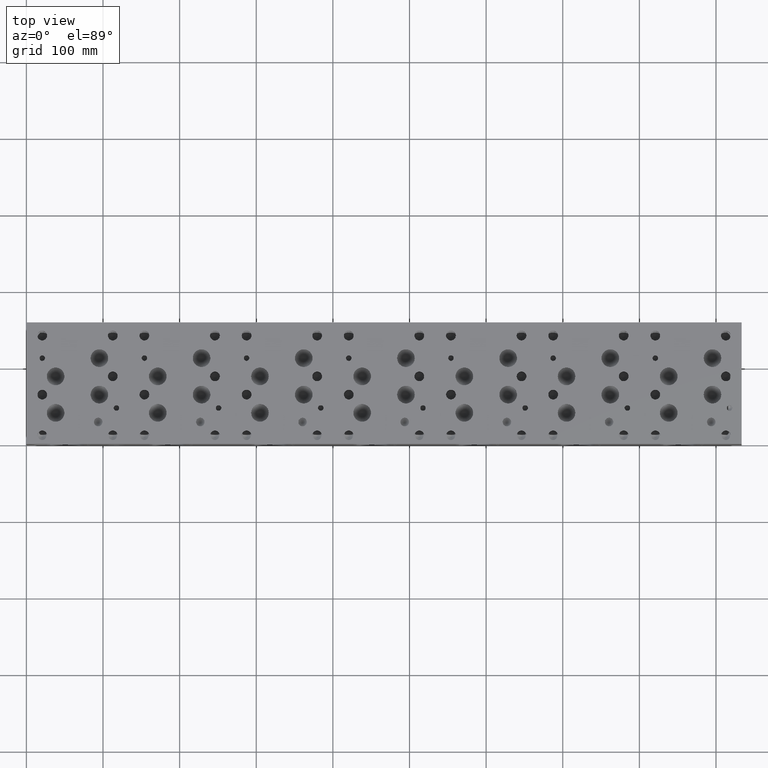
[diagram: clean part render]
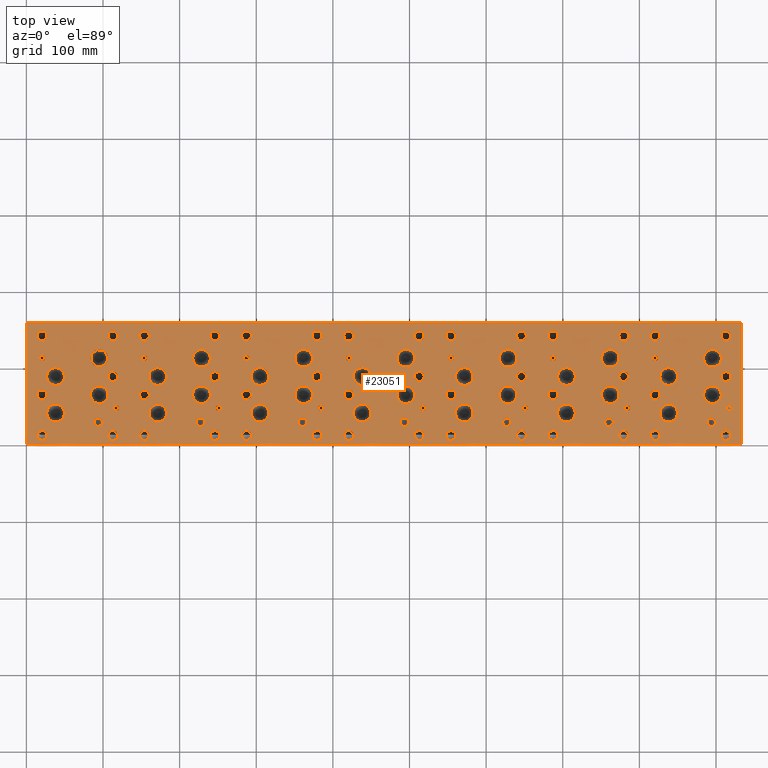
[diagram: same view with one face highlighted and labeled with its STEP entity id]
A machine part, top view. The second image highlights one B-rep face of the part: STEP entity #23051.
In plain terms, the highlighted planar face has unit normal (0, 0, 1).
Its self-contained STEP definition (entity closure, byte-faithful):
#910=CIRCLE('',#24238,5.5626);
#911=CIRCLE('',#24239,5.5626);
#914=CIRCLE('',#24244,5.5626);
#915=CIRCLE('',#24245,5.5626);
#918=CIRCLE('',#24250,5.5626);
#919=CIRCLE('',#24251,5.5626);
#922=CIRCLE('',#24256,5.5626);
#923=CIRCLE('',#24257,5.5626);
#926=CIRCLE('',#24262,5.5626);
#927=CIRCLE('',#24263,5.5626);
#930=CIRCLE('',#24268,5.5626);
#931=CIRCLE('',#24269,5.5626);
#934=CIRCLE('',#24274,5.55625);
#935=CIRCLE('',#24275,5.55625);
#938=CIRCLE('',#24280,11.50874);
#939=CIRCLE('',#24281,11.50874);
#942=CIRCLE('',#24286,11.5062);
#943=CIRCLE('',#24287,11.5062);
#946=CIRCLE('',#24292,11.5062);
#947=CIRCLE('',#24293,11.5062);
#950=CIRCLE('',#24298,11.5062);
#951=CIRCLE('',#24299,11.5062);
#954=CIRCLE('',#24304,11.5062);
#955=CIRCLE('',#24305,11.5062);
#958=CIRCLE('',#24310,11.5062);
#959=CIRCLE('',#24311,11.5062);
#962=CIRCLE('',#24316,11.5062);
#963=CIRCLE('',#24317,11.5062);
#966=CIRCLE('',#24322,11.5062);
#967=CIRCLE('',#24323,11.5062);
#970=CIRCLE('',#24328,11.5062);
#971=CIRCLE('',#24329,11.5062);
#974=CIRCLE('',#24334,11.5062);
#975=CIRCLE('',#24335,11.5062);
#978=CIRCLE('',#24340,11.5062);
#979=CIRCLE('',#24341,11.5062);
#982=CIRCLE('',#24346,11.5062);
#983=CIRCLE('',#24347,11.5062);
#986=CIRCLE('',#24352,11.5062);
#987=CIRCLE('',#24353,11.5062);
#990=CIRCLE('',#24358,11.5062);
#991=CIRCLE('',#24359,11.5062);
#994=CIRCLE('',#24364,11.5062);
#995=CIRCLE('',#24365,11.5062);
#998=CIRCLE('',#24370,11.5062);
#999=CIRCLE('',#24371,11.5062);
#1002=CIRCLE('',#24376,11.5062);
#1003=CIRCLE('',#24377,11.5062);
#1006=CIRCLE('',#24382,11.5062);
#1007=CIRCLE('',#24383,11.5062);
#1010=CIRCLE('',#24388,11.5062);
#1011=CIRCLE('',#24389,11.5062);
#1014=CIRCLE('',#24394,11.5062);
#1015=CIRCLE('',#24395,11.5062);
#1018=CIRCLE('',#24400,11.5062);
#1019=CIRCLE('',#24401,11.5062);
#1022=CIRCLE('',#24406,11.5062);
#1023=CIRCLE('',#24407,11.5062);
#1026=CIRCLE('',#24412,11.5062);
#1027=CIRCLE('',#24413,11.5062);
#1030=CIRCLE('',#24418,11.5062);
#1031=CIRCLE('',#24419,11.5062);
#1034=CIRCLE('',#24424,11.5062);
#1035=CIRCLE('',#24425,11.5062);
#1038=CIRCLE('',#24430,11.5062);
#1039=CIRCLE('',#24431,11.5062);
#1042=CIRCLE('',#24436,11.5062);
#1043=CIRCLE('',#24437,11.5062);
#1046=CIRCLE('',#24442,11.5062);
#1047=CIRCLE('',#24443,11.5062);
#1050=CIRCLE('',#24448,3.5687);
#1051=CIRCLE('',#24449,3.5687);
#1054=CIRCLE('',#24454,3.5687);
#1055=CIRCLE('',#24455,3.5687);
#1058=CIRCLE('',#24460,3.5687);
#1059=CIRCLE('',#24461,3.5687);
#1062=CIRCLE('',#24466,3.5687);
#1063=CIRCLE('',#24467,3.5687);
#1066=CIRCLE('',#24472,3.5687);
#1067=CIRCLE('',#24473,3.5687);
#1070=CIRCLE('',#24478,3.5687);
#1071=CIRCLE('',#24479,3.5687);
#1074=CIRCLE('',#24484,3.5687);
#1075=CIRCLE('',#24485,3.5687);
#1078=CIRCLE('',#24490,3.5687);
#1079=CIRCLE('',#24491,3.5687);
#1082=CIRCLE('',#24496,3.5687);
#1083=CIRCLE('',#24497,3.5687);
#1086=CIRCLE('',#24502,3.5687);
#1087=CIRCLE('',#24503,3.5687);
#1090=CIRCLE('',#24508,3.5687);
#1091=CIRCLE('',#24509,3.5687);
#1094=CIRCLE('',#24514,3.5687);
#1095=CIRCLE('',#24515,3.5687);
#1098=CIRCLE('',#24520,3.5687);
#1099=CIRCLE('',#24521,3.5687);
#1102=CIRCLE('',#24526,3.5687);
#1103=CIRCLE('',#24527,3.5687);
#1109=CIRCLE('',#24536,6.35);
#1110=CIRCLE('',#24537,6.35);
#1116=CIRCLE('',#24547,6.35);
#1117=CIRCLE('',#24548,6.35);
#1123=CIRCLE('',#24558,6.35);
#1124=CIRCLE('',#24559,6.35);
#1130=CIRCLE('',#24569,6.35);
#1131=CIRCLE('',#24570,6.35);
#1137=CIRCLE('',#24580,6.35);
#1138=CIRCLE('',#24581,6.35);
#1144=CIRCLE('',#24591,6.35);
#1145=CIRCLE('',#24592,6.35);
#1151=CIRCLE('',#24602,6.35);
#1152=CIRCLE('',#24603,6.35);
#1158=CIRCLE('',#24613,6.35);
#1159=CIRCLE('',#24614,6.35);
#1165=CIRCLE('',#24624,6.35);
#1166=CIRCLE('',#24625,6.35);
#1172=CIRCLE('',#24635,6.35);
#1173=CIRCLE('',#24636,6.35);
#1179=CIRCLE('',#24646,6.35);
#1180=CIRCLE('',#24647,6.35);
#1186=CIRCLE('',#24657,6.35);
#1187=CIRCLE('',#24658,6.35);
#1193=CIRCLE('',#24668,6.35);
#1194=CIRCLE('',#24669,6.35);
#1200=CIRCLE('',#24679,6.35);
#1201=CIRCLE('',#24680,6.35);
#1207=CIRCLE('',#24690,6.35);
#1208=CIRCLE('',#24691,6.35);
#1214=CIRCLE('',#24701,6.35);
#1215=CIRCLE('',#24702,6.35);
#1221=CIRCLE('',#24712,6.35);
#1222=CIRCLE('',#24713,6.35);
#1228=CIRCLE('',#24723,6.35);
#1229=CIRCLE('',#24724,6.35);
#1235=CIRCLE('',#24734,6.35);
#1236=CIRCLE('',#24735,6.35);
#1242=CIRCLE('',#24745,6.35);
#1243=CIRCLE('',#24746,6.35);
#1249=CIRCLE('',#24756,6.35);
#1250=CIRCLE('',#24757,6.35);
#1256=CIRCLE('',#24767,6.35);
#1257=CIRCLE('',#24768,6.35);
#1263=CIRCLE('',#24778,6.35);
#1264=CIRCLE('',#24779,6.35);
#1270=CIRCLE('',#24789,6.35);
#1271=CIRCLE('',#24790,6.35);
#1277=CIRCLE('',#24800,6.35);
#1278=CIRCLE('',#24801,6.35);
#1284=CIRCLE('',#24811,6.35);
#1285=CIRCLE('',#24812,6.35);
#1291=CIRCLE('',#24822,6.35);
#1292=CIRCLE('',#24823,6.35);
#1298=CIRCLE('',#24833,6.35);
#1299=CIRCLE('',#24834,6.35);
#1305=CIRCLE('',#24844,6.35);
#1306=CIRCLE('',#24845,6.35);
#1312=CIRCLE('',#24855,6.35);
#1313=CIRCLE('',#24856,6.35);
#1319=CIRCLE('',#24866,6.35);
#1320=CIRCLE('',#24867,6.35);
#1326=CIRCLE('',#24877,6.35);
#1327=CIRCLE('',#24878,6.35);
#1333=CIRCLE('',#24888,6.35);
#1334=CIRCLE('',#24889,6.35);
#1340=CIRCLE('',#24899,6.35);
#1341=CIRCLE('',#24900,6.35);
#1347=CIRCLE('',#24910,6.35);
#1348=CIRCLE('',#24911,6.35);
#1354=CIRCLE('',#24921,6.35);
#1355=CIRCLE('',#24922,6.35);
#1361=CIRCLE('',#24932,6.35);
#1362=CIRCLE('',#24933,6.35);
#1368=CIRCLE('',#24943,6.35);
#1369=CIRCLE('',#24944,6.35);
#1375=CIRCLE('',#24954,6.35);
#1376=CIRCLE('',#24955,6.35);
#1382=CIRCLE('',#24965,6.35);
#1383=CIRCLE('',#24966,6.35);
#1389=CIRCLE('',#24976,6.35);
#1390=CIRCLE('',#24977,6.35);
#1396=CIRCLE('',#24987,6.35);
#1397=CIRCLE('',#24988,6.35);
#1580=FACE_BOUND('',#4978,.T.);
#1581=FACE_BOUND('',#4979,.T.);
#1582=FACE_BOUND('',#4980,.T.);
#1583=FACE_BOUND('',#4981,.T.);
#1584=FACE_BOUND('',#4982,.T.);
#1585=FACE_BOUND('',#4983,.T.);
#1586=FACE_BOUND('',#4984,.T.);
#1587=FACE_BOUND('',#4985,.T.);
#1588=FACE_BOUND('',#4986,.T.);
#1589=FACE_BOUND('',#4987,.T.);
#1590=FACE_BOUND('',#4988,.T.);
#1591=FACE_BOUND('',#4989,.T.);
#1592=FACE_BOUND('',#4990,.T.);
#1593=FACE_BOUND('',#4991,.T.);
#1594=FACE_BOUND('',#4992,.T.);
#1595=FACE_BOUND('',#4993,.T.);
#1596=FACE_BOUND('',#4994,.T.);
#1597=FACE_BOUND('',#4995,.T.);
#1598=FACE_BOUND('',#4996,.T.);
#1599=FACE_BOUND('',#4997,.T.);
#1600=FACE_BOUND('',#4998,.T.);
#1601=FACE_BOUND('',#4999,.T.);
#1602=FACE_BOUND('',#5000,.T.);
#1603=FACE_BOUND('',#5001,.T.);
#1604=FACE_BOUND('',#5002,.T.);
#1605=FACE_BOUND('',#5003,.T.);
#1606=FACE_BOUND('',#5004,.T.);
#1607=FACE_BOUND('',#5005,.T.);
#1608=FACE_BOUND('',#5006,.T.);
#1609=FACE_BOUND('',#5007,.T.);
#1610=FACE_BOUND('',#5008,.T.);
#1611=FACE_BOUND('',#5009,.T.);
#1612=FACE_BOUND('',#5010,.T.);
#1613=FACE_BOUND('',#5011,.T.);
#1614=FACE_BOUND('',#5012,.T.);
#1615=FACE_BOUND('',#5013,.T.);
#1616=FACE_BOUND('',#5014,.T.);
#1617=FACE_BOUND('',#5015,.T.);
#1618=FACE_BOUND('',#5016,.T.);
#1619=FACE_BOUND('',#5017,.T.);
#1620=FACE_BOUND('',#5018,.T.);
#1621=FACE_BOUND('',#5019,.T.);
#1622=FACE_BOUND('',#5020,.T.);
#1623=FACE_BOUND('',#5021,.T.);
#1624=FACE_BOUND('',#5022,.T.);
#1625=FACE_BOUND('',#5023,.T.);
#1626=FACE_BOUND('',#5024,.T.);
#1627=FACE_BOUND('',#5025,.T.);
#1628=FACE_BOUND('',#5026,.T.);
#1629=FACE_BOUND('',#5027,.T.);
#1630=FACE_BOUND('',#5028,.T.);
#1631=FACE_BOUND('',#5029,.T.);
#1632=FACE_BOUND('',#5030,.T.);
#1633=FACE_BOUND('',#5031,.T.);
#1634=FACE_BOUND('',#5032,.T.);
#1635=FACE_BOUND('',#5033,.T.);
#1636=FACE_BOUND('',#5034,.T.);
#1637=FACE_BOUND('',#5035,.T.);
#1638=FACE_BOUND('',#5036,.T.);
#1639=FACE_BOUND('',#5037,.T.);
#1640=FACE_BOUND('',#5038,.T.);
#1641=FACE_BOUND('',#5039,.T.);
#1642=FACE_BOUND('',#5040,.T.);
#1643=FACE_BOUND('',#5041,.T.);
#1644=FACE_BOUND('',#5042,.T.);
#1645=FACE_BOUND('',#5043,.T.);
#1646=FACE_BOUND('',#5044,.T.);
#1647=FACE_BOUND('',#5045,.T.);
#1648=FACE_BOUND('',#5046,.T.);
#1649=FACE_BOUND('',#5047,.T.);
#1650=FACE_BOUND('',#5048,.T.);
#1651=FACE_BOUND('',#5049,.T.);
#1652=FACE_BOUND('',#5050,.T.);
#1653=FACE_BOUND('',#5051,.T.);
#1654=FACE_BOUND('',#5052,.T.);
#1655=FACE_BOUND('',#5053,.T.);
#1656=FACE_BOUND('',#5054,.T.);
#1657=FACE_BOUND('',#5055,.T.);
#1658=FACE_BOUND('',#5056,.T.);
#1659=FACE_BOUND('',#5057,.T.);
#1660=FACE_BOUND('',#5058,.T.);
#1661=FACE_BOUND('',#5059,.T.);
#1662=FACE_BOUND('',#5060,.T.);
#1663=FACE_BOUND('',#5061,.T.);
#1664=FACE_BOUND('',#5062,.T.);
#1665=FACE_BOUND('',#5063,.T.);
#1666=FACE_BOUND('',#5064,.T.);
#1667=FACE_BOUND('',#5065,.T.);
#1668=FACE_BOUND('',#5066,.T.);
#1669=FACE_BOUND('',#5067,.T.);
#1670=FACE_BOUND('',#5068,.T.);
#3568=FACE_OUTER_BOUND('',#4977,.T.);
#4977=EDGE_LOOP('',(#20446,#20447,#20448,#20449));
#4978=EDGE_LOOP('',(#20450,#20451));
#4979=EDGE_LOOP('',(#20452,#20453));
#4980=EDGE_LOOP('',(#20454,#20455));
#4981=EDGE_LOOP('',(#20456,#20457));
#4982=EDGE_LOOP('',(#20458,#20459));
#4983=EDGE_LOOP('',(#20460,#20461));
#4984=EDGE_LOOP('',(#20462,#20463));
#4985=EDGE_LOOP('',(#20464,#20465));
#4986=EDGE_LOOP('',(#20466,#20467));
#4987=EDGE_LOOP('',(#20468,#20469));
#4988=EDGE_LOOP('',(#20470,#20471));
#4989=EDGE_LOOP('',(#20472,#20473));
#4990=EDGE_LOOP('',(#20474,#20475));
#4991=EDGE_LOOP('',(#20476,#20477));
#4992=EDGE_LOOP('',(#20478,#20479));
#4993=EDGE_LOOP('',(#20480,#20481));
#4994=EDGE_LOOP('',(#20482,#20483));
#4995=EDGE_LOOP('',(#20484,#20485));
#4996=EDGE_LOOP('',(#20486,#20487));
#4997=EDGE_LOOP('',(#20488,#20489));
#4998=EDGE_LOOP('',(#20490,#20491));
#4999=EDGE_LOOP('',(#20492,#20493));
#5000=EDGE_LOOP('',(#20494,#20495));
#5001=EDGE_LOOP('',(#20496,#20497));
#5002=EDGE_LOOP('',(#20498,#20499));
#5003=EDGE_LOOP('',(#20500,#20501));
#5004=EDGE_LOOP('',(#20502,#20503));
#5005=EDGE_LOOP('',(#20504,#20505));
#5006=EDGE_LOOP('',(#20506,#20507));
#5007=EDGE_LOOP('',(#20508,#20509));
#5008=EDGE_LOOP('',(#20510,#20511));
#5009=EDGE_LOOP('',(#20512,#20513));
#5010=EDGE_LOOP('',(#20514,#20515));
#5011=EDGE_LOOP('',(#20516,#20517));
#5012=EDGE_LOOP('',(#20518,#20519));
#5013=EDGE_LOOP('',(#20520,#20521));
#5014=EDGE_LOOP('',(#20522,#20523));
#5015=EDGE_LOOP('',(#20524,#20525));
#5016=EDGE_LOOP('',(#20526,#20527));
#5017=EDGE_LOOP('',(#20528,#20529));
#5018=EDGE_LOOP('',(#20530,#20531));
#5019=EDGE_LOOP('',(#20532,#20533));
#5020=EDGE_LOOP('',(#20534,#20535));
#5021=EDGE_LOOP('',(#20536,#20537));
#5022=EDGE_LOOP('',(#20538,#20539));
#5023=EDGE_LOOP('',(#20540,#20541));
#5024=EDGE_LOOP('',(#20542,#20543));
#5025=EDGE_LOOP('',(#20544,#20545));
#5026=EDGE_LOOP('',(#20546,#20547));
#5027=EDGE_LOOP('',(#20548,#20549));
#5028=EDGE_LOOP('',(#20550,#20551));
#5029=EDGE_LOOP('',(#20552,#20553));
#5030=EDGE_LOOP('',(#20554,#20555));
#5031=EDGE_LOOP('',(#20556,#20557));
#5032=EDGE_LOOP('',(#20558,#20559));
#5033=EDGE_LOOP('',(#20560,#20561));
#5034=EDGE_LOOP('',(#20562,#20563));
#5035=EDGE_LOOP('',(#20564,#20565));
#5036=EDGE_LOOP('',(#20566,#20567));
#5037=EDGE_LOOP('',(#20568,#20569));
#5038=EDGE_LOOP('',(#20570,#20571));
#5039=EDGE_LOOP('',(#20572,#20573));
#5040=EDGE_LOOP('',(#20574,#20575));
#5041=EDGE_LOOP('',(#20576,#20577));
#5042=EDGE_LOOP('',(#20578,#20579));
#5043=EDGE_LOOP('',(#20580,#20581));
#5044=EDGE_LOOP('',(#20582,#20583));
#5045=EDGE_LOOP('',(#20584,#20585));
#5046=EDGE_LOOP('',(#20586,#20587));
#5047=EDGE_LOOP('',(#20588,#20589));
#5048=EDGE_LOOP('',(#20590,#20591));
#5049=EDGE_LOOP('',(#20592,#20593));
#5050=EDGE_LOOP('',(#20594,#20595));
#5051=EDGE_LOOP('',(#20596,#20597));
#5052=EDGE_LOOP('',(#20598,#20599));
#5053=EDGE_LOOP('',(#20600,#20601));
#5054=EDGE_LOOP('',(#20602,#20603));
#5055=EDGE_LOOP('',(#20604,#20605));
#5056=EDGE_LOOP('',(#20606,#20607));
#5057=EDGE_LOOP('',(#20608,#20609));
#5058=EDGE_LOOP('',(#20610,#20611));
#5059=EDGE_LOOP('',(#20612,#20613));
#5060=EDGE_LOOP('',(#20614,#20615));
#5061=EDGE_LOOP('',(#20616,#20617));
#5062=EDGE_LOOP('',(#20618,#20619));
#5063=EDGE_LOOP('',(#20620,#20621));
#5064=EDGE_LOOP('',(#20622,#20623));
#5065=EDGE_LOOP('',(#20624,#20625));
#5066=EDGE_LOOP('',(#20626,#20627));
#5067=EDGE_LOOP('',(#20628,#20629));
#5068=EDGE_LOOP('',(#20630,#20631));
#5128=LINE('',#30951,#6965);
#5188=LINE('',#31226,#7025);
#5435=LINE('',#33239,#7272);
#6906=LINE('',#40298,#8743);
#6965=VECTOR('',#25094,10.);
#7025=VECTOR('',#25208,10.);
#7272=VECTOR('',#25595,10.);
#8743=VECTOR('',#30684,10.);
#8794=VERTEX_POINT('',#30948);
#8795=VERTEX_POINT('',#30950);
#8854=VERTEX_POINT('',#31223);
#8855=VERTEX_POINT('',#31225);
#10425=VERTEX_POINT('',#38742);
#10426=VERTEX_POINT('',#38743);
#10430=VERTEX_POINT('',#38755);
#10431=VERTEX_POINT('',#38756);
#10435=VERTEX_POINT('',#38768);
#10436=VERTEX_POINT('',#38769);
#10440=VERTEX_POINT('',#38781);
#10441=VERTEX_POINT('',#38782);
#10445=VERTEX_POINT('',#38794);
#10446=VERTEX_POINT('',#38795);
#10450=VERTEX_POINT('',#38807);
#10451=VERTEX_POINT('',#38808);
#10455=VERTEX_POINT('',#38820);
#10456=VERTEX_POINT('',#38821);
#10460=VERTEX_POINT('',#38833);
#10461=VERTEX_POINT('',#38834);
#10465=VERTEX_POINT('',#38846);
#10466=VERTEX_POINT('',#38847);
#10470=VERTEX_POINT('',#38859);
#10471=VERTEX_POINT('',#38860);
#10475=VERTEX_POINT('',#38872);
#10476=VERTEX_POINT('',#38873);
#10480=VERTEX_POINT('',#38885);
#10481=VERTEX_POINT('',#38886);
#10485=VERTEX_POINT('',#38898);
#10486=VERTEX_POINT('',#38899);
#10490=VERTEX_POINT('',#38911);
#10491=VERTEX_POINT('',#38912);
#10495=VERTEX_POINT('',#38924);
#10496=VERTEX_POINT('',#38925);
#10500=VERTEX_POINT('',#38937);
#10501=VERTEX_POINT('',#38938);
#10505=VERTEX_POINT('',#38950);
#10506=VERTEX_POINT('',#38951);
#10510=VERTEX_POINT('',#38963);
#10511=VERTEX_POINT('',#38964);
#10515=VERTEX_POINT('',#38976);
#10516=VERTEX_POINT('',#38977);
#10520=VERTEX_POINT('',#38989);
#10521=VERTEX_POINT('',#38990);
#10525=VERTEX_POINT('',#39002);
#10526=VERTEX_POINT('',#39003);
#10530=VERTEX_POINT('',#39015);
#10531=VERTEX_POINT('',#39016);
#10535=VERTEX_POINT('',#39028);
#10536=VERTEX_POINT('',#39029);
#10540=VERTEX_POINT('',#39041);
#10541=VERTEX_POINT('',#39042);
#10545=VERTEX_POINT('',#39054);
#10546=VERTEX_POINT('',#39055);
#10550=VERTEX_POINT('',#39067);
#10551=VERTEX_POINT('',#39068);
#10555=VERTEX_POINT('',#39080);
#10556=VERTEX_POINT('',#39081);
#10560=VERTEX_POINT('',#39093);
#10561=VERTEX_POINT('',#39094);
#10565=VERTEX_POINT('',#39106);
#10566=VERTEX_POINT('',#39107);
#10570=VERTEX_POINT('',#39119);
#10571=VERTEX_POINT('',#39120);
#10575=VERTEX_POINT('',#39132);
#10576=VERTEX_POINT('',#39133);
#10580=VERTEX_POINT('',#39145);
#10581=VERTEX_POINT('',#39146);
#10585=VERTEX_POINT('',#39158);
#10586=VERTEX_POINT('',#39159);
#10590=VERTEX_POINT('',#39171);
#10591=VERTEX_POINT('',#39172);
#10595=VERTEX_POINT('',#39184);
#10596=VERTEX_POINT('',#39185);
#10600=VERTEX_POINT('',#39197);
#10601=VERTEX_POINT('',#39198);
#10605=VERTEX_POINT('',#39210);
#10606=VERTEX_POINT('',#39211);
#10610=VERTEX_POINT('',#39223);
#10611=VERTEX_POINT('',#39224);
#10615=VERTEX_POINT('',#39236);
#10616=VERTEX_POINT('',#39237);
#10620=VERTEX_POINT('',#39249);
#10621=VERTEX_POINT('',#39250);
#10625=VERTEX_POINT('',#39262);
#10626=VERTEX_POINT('',#39263);
#10630=VERTEX_POINT('',#39275);
#10631=VERTEX_POINT('',#39276);
#10635=VERTEX_POINT('',#39288);
#10636=VERTEX_POINT('',#39289);
#10640=VERTEX_POINT('',#39301);
#10641=VERTEX_POINT('',#39302);
#10645=VERTEX_POINT('',#39314);
#10646=VERTEX_POINT('',#39315);
#10650=VERTEX_POINT('',#39327);
#10651=VERTEX_POINT('',#39328);
#10655=VERTEX_POINT('',#39340);
#10656=VERTEX_POINT('',#39341);
#10660=VERTEX_POINT('',#39353);
#10661=VERTEX_POINT('',#39354);
#10665=VERTEX_POINT('',#39366);
#10666=VERTEX_POINT('',#39367);
#10673=VERTEX_POINT('',#39386);
#10674=VERTEX_POINT('',#39387);
#10681=VERTEX_POINT('',#39408);
#10682=VERTEX_POINT('',#39409);
#10689=VERTEX_POINT('',#39430);
#10690=VERTEX_POINT('',#39431);
#10697=VERTEX_POINT('',#39452);
#10698=VERTEX_POINT('',#39453);
#10705=VERTEX_POINT('',#39474);
#10706=VERTEX_POINT('',#39475);
#10713=VERTEX_POINT('',#39496);
#10714=VERTEX_POINT('',#39497);
#10721=VERTEX_POINT('',#39518);
#10722=VERTEX_POINT('',#39519);
#10729=VERTEX_POINT('',#39540);
#10730=VERTEX_POINT('',#39541);
#10737=VERTEX_POINT('',#39562);
#10738=VERTEX_POINT('',#39563);
#10745=VERTEX_POINT('',#39584);
#10746=VERTEX_POINT('',#39585);
#10753=VERTEX_POINT('',#39606);
#10754=VERTEX_POINT('',#39607);
#10761=VERTEX_POINT('',#39628);
#10762=VERTEX_POINT('',#39629);
#10769=VERTEX_POINT('',#39650);
#10770=VERTEX_POINT('',#39651);
#10777=VERTEX_POINT('',#39672);
#10778=VERTEX_POINT('',#39673);
#10785=VERTEX_POINT('',#39694);
#10786=VERTEX_POINT('',#39695);
#10793=VERTEX_POINT('',#39716);
#10794=VERTEX_POINT('',#39717);
#10801=VERTEX_POINT('',#39738);
#10802=VERTEX_POINT('',#39739);
#10809=VERTEX_POINT('',#39760);
#10810=VERTEX_POINT('',#39761);
#10817=VERTEX_POINT('',#39782);
#10818=VERTEX_POINT('',#39783);
#10825=VERTEX_POINT('',#39804);
#10826=VERTEX_POINT('',#39805);
#10833=VERTEX_POINT('',#39826);
#10834=VERTEX_POINT('',#39827);
#10841=VERTEX_POINT('',#39848);
#10842=VERTEX_POINT('',#39849);
#10849=VERTEX_POINT('',#39870);
#10850=VERTEX_POINT('',#39871);
#10857=VERTEX_POINT('',#39892);
#10858=VERTEX_POINT('',#39893);
#10865=VERTEX_POINT('',#39914);
#10866=VERTEX_POINT('',#39915);
#10873=VERTEX_POINT('',#39936);
#10874=VERTEX_POINT('',#39937);
#10881=VERTEX_POINT('',#39958);
#10882=VERTEX_POINT('',#39959);
#10889=VERTEX_POINT('',#39980);
#10890=VERTEX_POINT('',#39981);
#10897=VERTEX_POINT('',#40002);
#10898=VERTEX_POINT('',#40003);
#10905=VERTEX_POINT('',#40024);
#10906=VERTEX_POINT('',#40025);
#10913=VERTEX_POINT('',#40046);
#10914=VERTEX_POINT('',#40047);
#10921=VERTEX_POINT('',#40068);
#10922=VERTEX_POINT('',#40069);
#10929=VERTEX_POINT('',#40090);
#10930=VERTEX_POINT('',#40091);
#10937=VERTEX_POINT('',#40112);
#10938=VERTEX_POINT('',#40113);
#10945=VERTEX_POINT('',#40134);
#10946=VERTEX_POINT('',#40135);
#10953=VERTEX_POINT('',#40156);
#10954=VERTEX_POINT('',#40157);
#10961=VERTEX_POINT('',#40178);
#10962=VERTEX_POINT('',#40179);
#10969=VERTEX_POINT('',#40200);
#10970=VERTEX_POINT('',#40201);
#10977=VERTEX_POINT('',#40222);
#10978=VERTEX_POINT('',#40223);
#10985=VERTEX_POINT('',#40244);
#10986=VERTEX_POINT('',#40245);
#10993=VERTEX_POINT('',#40266);
#10994=VERTEX_POINT('',#40267);
#11001=VERTEX_POINT('',#40288);
#11002=VERTEX_POINT('',#40289);
#11077=EDGE_CURVE('',#8795,#8794,#5128,.T.);
#11161=EDGE_CURVE('',#8855,#8854,#5188,.T.);
#11592=EDGE_CURVE('',#8854,#8795,#5435,.T.);
#13501=EDGE_CURVE('',#10425,#10426,#910,.T.);
#13502=EDGE_CURVE('',#10426,#10425,#911,.T.);
#13507=EDGE_CURVE('',#10430,#10431,#914,.T.);
#13508=EDGE_CURVE('',#10431,#10430,#915,.T.);
#13513=EDGE_CURVE('',#10435,#10436,#918,.T.);
#13514=EDGE_CURVE('',#10436,#10435,#919,.T.);
#13519=EDGE_CURVE('',#10440,#10441,#922,.T.);
#13520=EDGE_CURVE('',#10441,#10440,#923,.T.);
#13525=EDGE_CURVE('',#10445,#10446,#926,.T.);
#13526=EDGE_CURVE('',#10446,#10445,#927,.T.);
#13531=EDGE_CURVE('',#10450,#10451,#930,.T.);
#13532=EDGE_CURVE('',#10451,#10450,#931,.T.);
#13537=EDGE_CURVE('',#10455,#10456,#934,.T.);
#13538=EDGE_CURVE('',#10456,#10455,#935,.T.);
#13543=EDGE_CURVE('',#10460,#10461,#938,.T.);
#13544=EDGE_CURVE('',#10461,#10460,#939,.T.);
#13549=EDGE_CURVE('',#10465,#10466,#942,.T.);
#13550=EDGE_CURVE('',#10466,#10465,#943,.T.);
#13555=EDGE_CURVE('',#10470,#10471,#946,.T.);
#13556=EDGE_CURVE('',#10471,#10470,#947,.T.);
#13561=EDGE_CURVE('',#10475,#10476,#950,.T.);
#13562=EDGE_CURVE('',#10476,#10475,#951,.T.);
#13567=EDGE_CURVE('',#10480,#10481,#954,.T.);
#13568=EDGE_CURVE('',#10481,#10480,#955,.T.);
#13573=EDGE_CURVE('',#10485,#10486,#958,.T.);
#13574=EDGE_CURVE('',#10486,#10485,#959,.T.);
#13579=EDGE_CURVE('',#10490,#10491,#962,.T.);
#13580=EDGE_CURVE('',#10491,#10490,#963,.T.);
#13585=EDGE_CURVE('',#10495,#10496,#966,.T.);
#13586=EDGE_CURVE('',#10496,#10495,#967,.T.);
#13591=EDGE_CURVE('',#10500,#10501,#970,.T.);
#13592=EDGE_CURVE('',#10501,#10500,#971,.T.);
#13597=EDGE_CURVE('',#10505,#10506,#974,.T.);
#13598=EDGE_CURVE('',#10506,#10505,#975,.T.);
#13603=EDGE_CURVE('',#10510,#10511,#978,.T.);
#13604=EDGE_CURVE('',#10511,#10510,#979,.T.);
#13609=EDGE_CURVE('',#10515,#10516,#982,.T.);
#13610=EDGE_CURVE('',#10516,#10515,#983,.T.);
#13615=EDGE_CURVE('',#10520,#10521,#986,.T.);
#13616=EDGE_CURVE('',#10521,#10520,#987,.T.);
#13621=EDGE_CURVE('',#10525,#10526,#990,.T.);
#13622=EDGE_CURVE('',#10526,#10525,#991,.T.);
#13627=EDGE_CURVE('',#10530,#10531,#994,.T.);
#13628=EDGE_CURVE('',#10531,#10530,#995,.T.);
#13633=EDGE_CURVE('',#10535,#10536,#998,.T.);
#13634=EDGE_CURVE('',#10536,#10535,#999,.T.);
#13639=EDGE_CURVE('',#10540,#10541,#1002,.T.);
#13640=EDGE_CURVE('',#10541,#10540,#1003,.T.);
#13645=EDGE_CURVE('',#10545,#10546,#1006,.T.);
#13646=EDGE_CURVE('',#10546,#10545,#1007,.T.);
#13651=EDGE_CURVE('',#10550,#10551,#1010,.T.);
#13652=EDGE_CURVE('',#10551,#10550,#1011,.T.);
#13657=EDGE_CURVE('',#10555,#10556,#1014,.T.);
#13658=EDGE_CURVE('',#10556,#10555,#1015,.T.);
#13663=EDGE_CURVE('',#10560,#10561,#1018,.T.);
#13664=EDGE_CURVE('',#10561,#10560,#1019,.T.);
#13669=EDGE_CURVE('',#10565,#10566,#1022,.T.);
#13670=EDGE_CURVE('',#10566,#10565,#1023,.T.);
#13675=EDGE_CURVE('',#10570,#10571,#1026,.T.);
#13676=EDGE_CURVE('',#10571,#10570,#1027,.T.);
#13681=EDGE_CURVE('',#10575,#10576,#1030,.T.);
#13682=EDGE_CURVE('',#10576,#10575,#1031,.T.);
#13687=EDGE_CURVE('',#10580,#10581,#1034,.T.);
#13688=EDGE_CURVE('',#10581,#10580,#1035,.T.);
#13693=EDGE_CURVE('',#10585,#10586,#1038,.T.);
#13694=EDGE_CURVE('',#10586,#10585,#1039,.T.);
#13699=EDGE_CURVE('',#10590,#10591,#1042,.T.);
#13700=EDGE_CURVE('',#10591,#10590,#1043,.T.);
#13705=EDGE_CURVE('',#10595,#10596,#1046,.T.);
#13706=EDGE_CURVE('',#10596,#10595,#1047,.T.);
#13711=EDGE_CURVE('',#10600,#10601,#1050,.T.);
#13712=EDGE_CURVE('',#10601,#10600,#1051,.T.);
#13717=EDGE_CURVE('',#10605,#10606,#1054,.T.);
#13718=EDGE_CURVE('',#10606,#10605,#1055,.T.);
#13723=EDGE_CURVE('',#10610,#10611,#1058,.T.);
#13724=EDGE_CURVE('',#10611,#10610,#1059,.T.);
#13729=EDGE_CURVE('',#10615,#10616,#1062,.T.);
#13730=EDGE_CURVE('',#10616,#10615,#1063,.T.);
#13735=EDGE_CURVE('',#10620,#10621,#1066,.T.);
#13736=EDGE_CURVE('',#10621,#10620,#1067,.T.);
#13741=EDGE_CURVE('',#10625,#10626,#1070,.T.);
#13742=EDGE_CURVE('',#10626,#10625,#1071,.T.);
#13747=EDGE_CURVE('',#10630,#10631,#1074,.T.);
#13748=EDGE_CURVE('',#10631,#10630,#1075,.T.);
#13753=EDGE_CURVE('',#10635,#10636,#1078,.T.);
#13754=EDGE_CURVE('',#10636,#10635,#1079,.T.);
#13759=EDGE_CURVE('',#10640,#10641,#1082,.T.);
#13760=EDGE_CURVE('',#10641,#10640,#1083,.T.);
#13765=EDGE_CURVE('',#10645,#10646,#1086,.T.);
#13766=EDGE_CURVE('',#10646,#10645,#1087,.T.);
#13771=EDGE_CURVE('',#10650,#10651,#1090,.T.);
#13772=EDGE_CURVE('',#10651,#10650,#1091,.T.);
#13777=EDGE_CURVE('',#10655,#10656,#1094,.T.);
#13778=EDGE_CURVE('',#10656,#10655,#1095,.T.);
#13783=EDGE_CURVE('',#10660,#10661,#1098,.T.);
#13784=EDGE_CURVE('',#10661,#10660,#1099,.T.);
#13789=EDGE_CURVE('',#10665,#10666,#1102,.T.);
#13790=EDGE_CURVE('',#10666,#10665,#1103,.T.);
#13798=EDGE_CURVE('',#10673,#10674,#1109,.T.);
#13799=EDGE_CURVE('',#10674,#10673,#1110,.T.);
#13808=EDGE_CURVE('',#10681,#10682,#1116,.T.);
#13809=EDGE_CURVE('',#10682,#10681,#1117,.T.);
#13818=EDGE_CURVE('',#10689,#10690,#1123,.T.);
#13819=EDGE_CURVE('',#10690,#10689,#1124,.T.);
#13828=EDGE_CURVE('',#10697,#10698,#1130,.T.);
#13829=EDGE_CURVE('',#10698,#10697,#1131,.T.);
#13838=EDGE_CURVE('',#10705,#10706,#1137,.T.);
#13839=EDGE_CURVE('',#10706,#10705,#1138,.T.);
#13848=EDGE_CURVE('',#10713,#10714,#1144,.T.);
#13849=EDGE_CURVE('',#10714,#10713,#1145,.T.);
#13858=EDGE_CURVE('',#10721,#10722,#1151,.T.);
#13859=EDGE_CURVE('',#10722,#10721,#1152,.T.);
#13868=EDGE_CURVE('',#10729,#10730,#1158,.T.);
#13869=EDGE_CURVE('',#10730,#10729,#1159,.T.);
#13878=EDGE_CURVE('',#10737,#10738,#1165,.T.);
#13879=EDGE_CURVE('',#10738,#10737,#1166,.T.);
#13888=EDGE_CURVE('',#10745,#10746,#1172,.T.);
#13889=EDGE_CURVE('',#10746,#10745,#1173,.T.);
#13898=EDGE_CURVE('',#10753,#10754,#1179,.T.);
#13899=EDGE_CURVE('',#10754,#10753,#1180,.T.);
#13908=EDGE_CURVE('',#10761,#10762,#1186,.T.);
#13909=EDGE_CURVE('',#10762,#10761,#1187,.T.);
#13918=EDGE_CURVE('',#10769,#10770,#1193,.T.);
#13919=EDGE_CURVE('',#10770,#10769,#1194,.T.);
#13928=EDGE_CURVE('',#10777,#10778,#1200,.T.);
#13929=EDGE_CURVE('',#10778,#10777,#1201,.T.);
#13938=EDGE_CURVE('',#10785,#10786,#1207,.T.);
#13939=EDGE_CURVE('',#10786,#10785,#1208,.T.);
#13948=EDGE_CURVE('',#10793,#10794,#1214,.T.);
#13949=EDGE_CURVE('',#10794,#10793,#1215,.T.);
#13958=EDGE_CURVE('',#10801,#10802,#1221,.T.);
#13959=EDGE_CURVE('',#10802,#10801,#1222,.T.);
#13968=EDGE_CURVE('',#10809,#10810,#1228,.T.);
#13969=EDGE_CURVE('',#10810,#10809,#1229,.T.);
#13978=EDGE_CURVE('',#10817,#10818,#1235,.T.);
#13979=EDGE_CURVE('',#10818,#10817,#1236,.T.);
#13988=EDGE_CURVE('',#10825,#10826,#1242,.T.);
#13989=EDGE_CURVE('',#10826,#10825,#1243,.T.);
#13998=EDGE_CURVE('',#10833,#10834,#1249,.T.);
#13999=EDGE_CURVE('',#10834,#10833,#1250,.T.);
#14008=EDGE_CURVE('',#10841,#10842,#1256,.T.);
#14009=EDGE_CURVE('',#10842,#10841,#1257,.T.);
#14018=EDGE_CURVE('',#10849,#10850,#1263,.T.);
#14019=EDGE_CURVE('',#10850,#10849,#1264,.T.);
#14028=EDGE_CURVE('',#10857,#10858,#1270,.T.);
#14029=EDGE_CURVE('',#10858,#10857,#1271,.T.);
#14038=EDGE_CURVE('',#10865,#10866,#1277,.T.);
#14039=EDGE_CURVE('',#10866,#10865,#1278,.T.);
#14048=EDGE_CURVE('',#10873,#10874,#1284,.T.);
#14049=EDGE_CURVE('',#10874,#10873,#1285,.T.);
#14058=EDGE_CURVE('',#10881,#10882,#1291,.T.);
#14059=EDGE_CURVE('',#10882,#10881,#1292,.T.);
#14068=EDGE_CURVE('',#10889,#10890,#1298,.T.);
#14069=EDGE_CURVE('',#10890,#10889,#1299,.T.);
#14078=EDGE_CURVE('',#10897,#10898,#1305,.T.);
#14079=EDGE_CURVE('',#10898,#10897,#1306,.T.);
#14088=EDGE_CURVE('',#10905,#10906,#1312,.T.);
#14089=EDGE_CURVE('',#10906,#10905,#1313,.T.);
#14098=EDGE_CURVE('',#10913,#10914,#1319,.T.);
#14099=EDGE_CURVE('',#10914,#10913,#1320,.T.);
#14108=EDGE_CURVE('',#10921,#10922,#1326,.T.);
#14109=EDGE_CURVE('',#10922,#10921,#1327,.T.);
#14118=EDGE_CURVE('',#10929,#10930,#1333,.T.);
#14119=EDGE_CURVE('',#10930,#10929,#1334,.T.);
#14128=EDGE_CURVE('',#10937,#10938,#1340,.T.);
#14129=EDGE_CURVE('',#10938,#10937,#1341,.T.);
#14138=EDGE_CURVE('',#10945,#10946,#1347,.T.);
#14139=EDGE_CURVE('',#10946,#10945,#1348,.T.);
#14148=EDGE_CURVE('',#10953,#10954,#1354,.T.);
#14149=EDGE_CURVE('',#10954,#10953,#1355,.T.);
#14158=EDGE_CURVE('',#10961,#10962,#1361,.T.);
#14159=EDGE_CURVE('',#10962,#10961,#1362,.T.);
#14168=EDGE_CURVE('',#10969,#10970,#1368,.T.);
#14169=EDGE_CURVE('',#10970,#10969,#1369,.T.);
#14178=EDGE_CURVE('',#10977,#10978,#1375,.T.);
#14179=EDGE_CURVE('',#10978,#10977,#1376,.T.);
#14188=EDGE_CURVE('',#10985,#10986,#1382,.T.);
#14189=EDGE_CURVE('',#10986,#10985,#1383,.T.);
#14198=EDGE_CURVE('',#10993,#10994,#1389,.T.);
#14199=EDGE_CURVE('',#10994,#10993,#1390,.T.);
#14208=EDGE_CURVE('',#11001,#11002,#1396,.T.);
#14209=EDGE_CURVE('',#11002,#11001,#1397,.T.);
#14213=EDGE_CURVE('',#8794,#8855,#6906,.T.);
#20446=ORIENTED_EDGE('',*,*,#11592,.T.);
#20447=ORIENTED_EDGE('',*,*,#11077,.T.);
#20448=ORIENTED_EDGE('',*,*,#14213,.T.);
#20449=ORIENTED_EDGE('',*,*,#11161,.T.);
#20450=ORIENTED_EDGE('',*,*,#13501,.T.);
#20451=ORIENTED_EDGE('',*,*,#13502,.T.);
#20452=ORIENTED_EDGE('',*,*,#13507,.T.);
#20453=ORIENTED_EDGE('',*,*,#13508,.T.);
#20454=ORIENTED_EDGE('',*,*,#13513,.T.);
#20455=ORIENTED_EDGE('',*,*,#13514,.T.);
#20456=ORIENTED_EDGE('',*,*,#13519,.T.);
#20457=ORIENTED_EDGE('',*,*,#13520,.T.);
#20458=ORIENTED_EDGE('',*,*,#13525,.T.);
#20459=ORIENTED_EDGE('',*,*,#13526,.T.);
#20460=ORIENTED_EDGE('',*,*,#13531,.T.);
#20461=ORIENTED_EDGE('',*,*,#13532,.T.);
#20462=ORIENTED_EDGE('',*,*,#13537,.T.);
#20463=ORIENTED_EDGE('',*,*,#13538,.T.);
#20464=ORIENTED_EDGE('',*,*,#13543,.T.);
#20465=ORIENTED_EDGE('',*,*,#13544,.T.);
#20466=ORIENTED_EDGE('',*,*,#13549,.T.);
#20467=ORIENTED_EDGE('',*,*,#13550,.T.);
#20468=ORIENTED_EDGE('',*,*,#13555,.T.);
#20469=ORIENTED_EDGE('',*,*,#13556,.T.);
#20470=ORIENTED_EDGE('',*,*,#13561,.T.);
#20471=ORIENTED_EDGE('',*,*,#13562,.T.);
#20472=ORIENTED_EDGE('',*,*,#13567,.T.);
#20473=ORIENTED_EDGE('',*,*,#13568,.T.);
#20474=ORIENTED_EDGE('',*,*,#13573,.T.);
#20475=ORIENTED_EDGE('',*,*,#13574,.T.);
#20476=ORIENTED_EDGE('',*,*,#13579,.T.);
#20477=ORIENTED_EDGE('',*,*,#13580,.T.);
#20478=ORIENTED_EDGE('',*,*,#13585,.T.);
#20479=ORIENTED_EDGE('',*,*,#13586,.T.);
#20480=ORIENTED_EDGE('',*,*,#13591,.T.);
#20481=ORIENTED_EDGE('',*,*,#13592,.T.);
#20482=ORIENTED_EDGE('',*,*,#13597,.T.);
#20483=ORIENTED_EDGE('',*,*,#13598,.T.);
#20484=ORIENTED_EDGE('',*,*,#13603,.T.);
#20485=ORIENTED_EDGE('',*,*,#13604,.T.);
#20486=ORIENTED_EDGE('',*,*,#13609,.T.);
#20487=ORIENTED_EDGE('',*,*,#13610,.T.);
#20488=ORIENTED_EDGE('',*,*,#13615,.T.);
#20489=ORIENTED_EDGE('',*,*,#13616,.T.);
#20490=ORIENTED_EDGE('',*,*,#13621,.T.);
#20491=ORIENTED_EDGE('',*,*,#13622,.T.);
#20492=ORIENTED_EDGE('',*,*,#13627,.T.);
#20493=ORIENTED_EDGE('',*,*,#13628,.T.);
#20494=ORIENTED_EDGE('',*,*,#13633,.T.);
#20495=ORIENTED_EDGE('',*,*,#13634,.T.);
#20496=ORIENTED_EDGE('',*,*,#13639,.T.);
#20497=ORIENTED_EDGE('',*,*,#13640,.T.);
#20498=ORIENTED_EDGE('',*,*,#13645,.T.);
#20499=ORIENTED_EDGE('',*,*,#13646,.T.);
#20500=ORIENTED_EDGE('',*,*,#13651,.T.);
#20501=ORIENTED_EDGE('',*,*,#13652,.T.);
#20502=ORIENTED_EDGE('',*,*,#13657,.T.);
#20503=ORIENTED_EDGE('',*,*,#13658,.T.);
#20504=ORIENTED_EDGE('',*,*,#13663,.T.);
#20505=ORIENTED_EDGE('',*,*,#13664,.T.);
#20506=ORIENTED_EDGE('',*,*,#13669,.T.);
#20507=ORIENTED_EDGE('',*,*,#13670,.T.);
#20508=ORIENTED_EDGE('',*,*,#13675,.T.);
#20509=ORIENTED_EDGE('',*,*,#13676,.T.);
#20510=ORIENTED_EDGE('',*,*,#13681,.T.);
#20511=ORIENTED_EDGE('',*,*,#13682,.T.);
#20512=ORIENTED_EDGE('',*,*,#13687,.T.);
#20513=ORIENTED_EDGE('',*,*,#13688,.T.);
#20514=ORIENTED_EDGE('',*,*,#13693,.T.);
#20515=ORIENTED_EDGE('',*,*,#13694,.T.);
#20516=ORIENTED_EDGE('',*,*,#13699,.T.);
#20517=ORIENTED_EDGE('',*,*,#13700,.T.);
#20518=ORIENTED_EDGE('',*,*,#13705,.T.);
#20519=ORIENTED_EDGE('',*,*,#13706,.T.);
#20520=ORIENTED_EDGE('',*,*,#13711,.T.);
#20521=ORIENTED_EDGE('',*,*,#13712,.T.);
#20522=ORIENTED_EDGE('',*,*,#13717,.T.);
#20523=ORIENTED_EDGE('',*,*,#13718,.T.);
#20524=ORIENTED_EDGE('',*,*,#13723,.T.);
#20525=ORIENTED_EDGE('',*,*,#13724,.T.);
#20526=ORIENTED_EDGE('',*,*,#13729,.T.);
#20527=ORIENTED_EDGE('',*,*,#13730,.T.);
#20528=ORIENTED_EDGE('',*,*,#13735,.T.);
#20529=ORIENTED_EDGE('',*,*,#13736,.T.);
#20530=ORIENTED_EDGE('',*,*,#13741,.T.);
#20531=ORIENTED_EDGE('',*,*,#13742,.T.);
#20532=ORIENTED_EDGE('',*,*,#13747,.T.);
#20533=ORIENTED_EDGE('',*,*,#13748,.T.);
#20534=ORIENTED_EDGE('',*,*,#13753,.T.);
#20535=ORIENTED_EDGE('',*,*,#13754,.T.);
#20536=ORIENTED_EDGE('',*,*,#13759,.T.);
#20537=ORIENTED_EDGE('',*,*,#13760,.T.);
#20538=ORIENTED_EDGE('',*,*,#13765,.T.);
#20539=ORIENTED_EDGE('',*,*,#13766,.T.);
#20540=ORIENTED_EDGE('',*,*,#13771,.T.);
#20541=ORIENTED_EDGE('',*,*,#13772,.T.);
#20542=ORIENTED_EDGE('',*,*,#13777,.T.);
#20543=ORIENTED_EDGE('',*,*,#13778,.T.);
#20544=ORIENTED_EDGE('',*,*,#13783,.T.);
#20545=ORIENTED_EDGE('',*,*,#13784,.T.);
#20546=ORIENTED_EDGE('',*,*,#13789,.T.);
#20547=ORIENTED_EDGE('',*,*,#13790,.T.);
#20548=ORIENTED_EDGE('',*,*,#13798,.T.);
#20549=ORIENTED_EDGE('',*,*,#13799,.T.);
#20550=ORIENTED_EDGE('',*,*,#13808,.T.);
#20551=ORIENTED_EDGE('',*,*,#13809,.T.);
#20552=ORIENTED_EDGE('',*,*,#13818,.T.);
#20553=ORIENTED_EDGE('',*,*,#13819,.T.);
#20554=ORIENTED_EDGE('',*,*,#13828,.T.);
#20555=ORIENTED_EDGE('',*,*,#13829,.T.);
#20556=ORIENTED_EDGE('',*,*,#13838,.T.);
#20557=ORIENTED_EDGE('',*,*,#13839,.T.);
#20558=ORIENTED_EDGE('',*,*,#13848,.T.);
#20559=ORIENTED_EDGE('',*,*,#13849,.T.);
#20560=ORIENTED_EDGE('',*,*,#13858,.T.);
#20561=ORIENTED_EDGE('',*,*,#13859,.T.);
#20562=ORIENTED_EDGE('',*,*,#13868,.T.);
#20563=ORIENTED_EDGE('',*,*,#13869,.T.);
#20564=ORIENTED_EDGE('',*,*,#13878,.T.);
#20565=ORIENTED_EDGE('',*,*,#13879,.T.);
#20566=ORIENTED_EDGE('',*,*,#13888,.T.);
#20567=ORIENTED_EDGE('',*,*,#13889,.T.);
#20568=ORIENTED_EDGE('',*,*,#13898,.T.);
#20569=ORIENTED_EDGE('',*,*,#13899,.T.);
#20570=ORIENTED_EDGE('',*,*,#13908,.T.);
#20571=ORIENTED_EDGE('',*,*,#13909,.T.);
#20572=ORIENTED_EDGE('',*,*,#13918,.T.);
#20573=ORIENTED_EDGE('',*,*,#13919,.T.);
#20574=ORIENTED_EDGE('',*,*,#13928,.T.);
#20575=ORIENTED_EDGE('',*,*,#13929,.T.);
#20576=ORIENTED_EDGE('',*,*,#13938,.T.);
#20577=ORIENTED_EDGE('',*,*,#13939,.T.);
#20578=ORIENTED_EDGE('',*,*,#13948,.T.);
#20579=ORIENTED_EDGE('',*,*,#13949,.T.);
#20580=ORIENTED_EDGE('',*,*,#13958,.T.);
#20581=ORIENTED_EDGE('',*,*,#13959,.T.);
#20582=ORIENTED_EDGE('',*,*,#13968,.T.);
#20583=ORIENTED_EDGE('',*,*,#13969,.T.);
#20584=ORIENTED_EDGE('',*,*,#13978,.T.);
#20585=ORIENTED_EDGE('',*,*,#13979,.T.);
#20586=ORIENTED_EDGE('',*,*,#13988,.T.);
#20587=ORIENTED_EDGE('',*,*,#13989,.T.);
#20588=ORIENTED_EDGE('',*,*,#13998,.T.);
#20589=ORIENTED_EDGE('',*,*,#13999,.T.);
#20590=ORIENTED_EDGE('',*,*,#14008,.T.);
#20591=ORIENTED_EDGE('',*,*,#14009,.T.);
#20592=ORIENTED_EDGE('',*,*,#14018,.T.);
#20593=ORIENTED_EDGE('',*,*,#14019,.T.);
#20594=ORIENTED_EDGE('',*,*,#14028,.T.);
#20595=ORIENTED_EDGE('',*,*,#14029,.T.);
#20596=ORIENTED_EDGE('',*,*,#14038,.T.);
#20597=ORIENTED_EDGE('',*,*,#14039,.T.);
#20598=ORIENTED_EDGE('',*,*,#14048,.T.);
#20599=ORIENTED_EDGE('',*,*,#14049,.T.);
#20600=ORIENTED_EDGE('',*,*,#14058,.T.);
#20601=ORIENTED_EDGE('',*,*,#14059,.T.);
#20602=ORIENTED_EDGE('',*,*,#14068,.T.);
#20603=ORIENTED_EDGE('',*,*,#14069,.T.);
#20604=ORIENTED_EDGE('',*,*,#14078,.T.);
#20605=ORIENTED_EDGE('',*,*,#14079,.T.);
#20606=ORIENTED_EDGE('',*,*,#14088,.T.);
#20607=ORIENTED_EDGE('',*,*,#14089,.T.);
#20608=ORIENTED_EDGE('',*,*,#14098,.T.);
#20609=ORIENTED_EDGE('',*,*,#14099,.T.);
#20610=ORIENTED_EDGE('',*,*,#14108,.T.);
#20611=ORIENTED_EDGE('',*,*,#14109,.T.);
#20612=ORIENTED_EDGE('',*,*,#14118,.T.);
#20613=ORIENTED_EDGE('',*,*,#14119,.T.);
#20614=ORIENTED_EDGE('',*,*,#14128,.T.);
#20615=ORIENTED_EDGE('',*,*,#14129,.T.);
#20616=ORIENTED_EDGE('',*,*,#14138,.T.);
#20617=ORIENTED_EDGE('',*,*,#14139,.T.);
#20618=ORIENTED_EDGE('',*,*,#14148,.T.);
#20619=ORIENTED_EDGE('',*,*,#14149,.T.);
#20620=ORIENTED_EDGE('',*,*,#14158,.T.);
#20621=ORIENTED_EDGE('',*,*,#14159,.T.);
#20622=ORIENTED_EDGE('',*,*,#14168,.T.);
#20623=ORIENTED_EDGE('',*,*,#14169,.T.);
#20624=ORIENTED_EDGE('',*,*,#14178,.T.);
#20625=ORIENTED_EDGE('',*,*,#14179,.T.);
#20626=ORIENTED_EDGE('',*,*,#14188,.T.);
#20627=ORIENTED_EDGE('',*,*,#14189,.T.);
#20628=ORIENTED_EDGE('',*,*,#14198,.T.);
#20629=ORIENTED_EDGE('',*,*,#14199,.T.);
#20630=ORIENTED_EDGE('',*,*,#14208,.T.);
#20631=ORIENTED_EDGE('',*,*,#14209,.T.);
#21179=PLANE('',#24994);
#23051=ADVANCED_FACE('',(#3568,#1580,#1581,#1582,#1583,#1584,#1585,#1586,
#1587,#1588,#1589,#1590,#1591,#1592,#1593,#1594,#1595,#1596,#1597,#1598,
#1599,#1600,#1601,#1602,#1603,#1604,#1605,#1606,#1607,#1608,#1609,#1610,
#1611,#1612,#1613,#1614,#1615,#1616,#1617,#1618,#1619,#1620,#1621,#1622,
#1623,#1624,#1625,#1626,#1627,#1628,#1629,#1630,#1631,#1632,#1633,#1634,
#1635,#1636,#1637,#1638,#1639,#1640,#1641,#1642,#1643,#1644,#1645,#1646,
#1647,#1648,#1649,#1650,#1651,#1652,#1653,#1654,#1655,#1656,#1657,#1658,
#1659,#1660,#1661,#1662,#1663,#1664,#1665,#1666,#1667,#1668,#1669,#1670),
#21179,.T.);
#24238=AXIS2_PLACEMENT_3D('',#38744,#28952,#28953);
#24239=AXIS2_PLACEMENT_3D('',#38745,#28954,#28955);
#24244=AXIS2_PLACEMENT_3D('',#38757,#28966,#28967);
#24245=AXIS2_PLACEMENT_3D('',#38758,#28968,#28969);
#24250=AXIS2_PLACEMENT_3D('',#38770,#28980,#28981);
#24251=AXIS2_PLACEMENT_3D('',#38771,#28982,#28983);
#24256=AXIS2_PLACEMENT_3D('',#38783,#28994,#28995);
#24257=AXIS2_PLACEMENT_3D('',#38784,#28996,#28997);
#24262=AXIS2_PLACEMENT_3D('',#38796,#29008,#29009);
#24263=AXIS2_PLACEMENT_3D('',#38797,#29010,#29011);
#24268=AXIS2_PLACEMENT_3D('',#38809,#29022,#29023);
#24269=AXIS2_PLACEMENT_3D('',#38810,#29024,#29025);
#24274=AXIS2_PLACEMENT_3D('',#38822,#29036,#29037);
#24275=AXIS2_PLACEMENT_3D('',#38823,#29038,#29039);
#24280=AXIS2_PLACEMENT_3D('',#38835,#29050,#29051);
#24281=AXIS2_PLACEMENT_3D('',#38836,#29052,#29053);
#24286=AXIS2_PLACEMENT_3D('',#38848,#29064,#29065);
#24287=AXIS2_PLACEMENT_3D('',#38849,#29066,#29067);
#24292=AXIS2_PLACEMENT_3D('',#38861,#29078,#29079);
#24293=AXIS2_PLACEMENT_3D('',#38862,#29080,#29081);
#24298=AXIS2_PLACEMENT_3D('',#38874,#29092,#29093);
#24299=AXIS2_PLACEMENT_3D('',#38875,#29094,#29095);
#24304=AXIS2_PLACEMENT_3D('',#38887,#29106,#29107);
#24305=AXIS2_PLACEMENT_3D('',#38888,#29108,#29109);
#24310=AXIS2_PLACEMENT_3D('',#38900,#29120,#29121);
#24311=AXIS2_PLACEMENT_3D('',#38901,#29122,#29123);
#24316=AXIS2_PLACEMENT_3D('',#38913,#29134,#29135);
#24317=AXIS2_PLACEMENT_3D('',#38914,#29136,#29137);
#24322=AXIS2_PLACEMENT_3D('',#38926,#29148,#29149);
#24323=AXIS2_PLACEMENT_3D('',#38927,#29150,#29151);
#24328=AXIS2_PLACEMENT_3D('',#38939,#29162,#29163);
#24329=AXIS2_PLACEMENT_3D('',#38940,#29164,#29165);
#24334=AXIS2_PLACEMENT_3D('',#38952,#29176,#29177);
#24335=AXIS2_PLACEMENT_3D('',#38953,#29178,#29179);
#24340=AXIS2_PLACEMENT_3D('',#38965,#29190,#29191);
#24341=AXIS2_PLACEMENT_3D('',#38966,#29192,#29193);
#24346=AXIS2_PLACEMENT_3D('',#38978,#29204,#29205);
#24347=AXIS2_PLACEMENT_3D('',#38979,#29206,#29207);
#24352=AXIS2_PLACEMENT_3D('',#38991,#29218,#29219);
#24353=AXIS2_PLACEMENT_3D('',#38992,#29220,#29221);
#24358=AXIS2_PLACEMENT_3D('',#39004,#29232,#29233);
#24359=AXIS2_PLACEMENT_3D('',#39005,#29234,#29235);
#24364=AXIS2_PLACEMENT_3D('',#39017,#29246,#29247);
#24365=AXIS2_PLACEMENT_3D('',#39018,#29248,#29249);
#24370=AXIS2_PLACEMENT_3D('',#39030,#29260,#29261);
#24371=AXIS2_PLACEMENT_3D('',#39031,#29262,#29263);
#24376=AXIS2_PLACEMENT_3D('',#39043,#29274,#29275);
#24377=AXIS2_PLACEMENT_3D('',#39044,#29276,#29277);
#24382=AXIS2_PLACEMENT_3D('',#39056,#29288,#29289);
#24383=AXIS2_PLACEMENT_3D('',#39057,#29290,#29291);
#24388=AXIS2_PLACEMENT_3D('',#39069,#29302,#29303);
#24389=AXIS2_PLACEMENT_3D('',#39070,#29304,#29305);
#24394=AXIS2_PLACEMENT_3D('',#39082,#29316,#29317);
#24395=AXIS2_PLACEMENT_3D('',#39083,#29318,#29319);
#24400=AXIS2_PLACEMENT_3D('',#39095,#29330,#29331);
#24401=AXIS2_PLACEMENT_3D('',#39096,#29332,#29333);
#24406=AXIS2_PLACEMENT_3D('',#39108,#29344,#29345);
#24407=AXIS2_PLACEMENT_3D('',#39109,#29346,#29347);
#24412=AXIS2_PLACEMENT_3D('',#39121,#29358,#29359);
#24413=AXIS2_PLACEMENT_3D('',#39122,#29360,#29361);
#24418=AXIS2_PLACEMENT_3D('',#39134,#29372,#29373);
#24419=AXIS2_PLACEMENT_3D('',#39135,#29374,#29375);
#24424=AXIS2_PLACEMENT_3D('',#39147,#29386,#29387);
#24425=AXIS2_PLACEMENT_3D('',#39148,#29388,#29389);
#24430=AXIS2_PLACEMENT_3D('',#39160,#29400,#29401);
#24431=AXIS2_PLACEMENT_3D('',#39161,#29402,#29403);
#24436=AXIS2_PLACEMENT_3D('',#39173,#29414,#29415);
#24437=AXIS2_PLACEMENT_3D('',#39174,#29416,#29417);
#24442=AXIS2_PLACEMENT_3D('',#39186,#29428,#29429);
#24443=AXIS2_PLACEMENT_3D('',#39187,#29430,#29431);
#24448=AXIS2_PLACEMENT_3D('',#39199,#29442,#29443);
#24449=AXIS2_PLACEMENT_3D('',#39200,#29444,#29445);
#24454=AXIS2_PLACEMENT_3D('',#39212,#29456,#29457);
#24455=AXIS2_PLACEMENT_3D('',#39213,#29458,#29459);
#24460=AXIS2_PLACEMENT_3D('',#39225,#29470,#29471);
#24461=AXIS2_PLACEMENT_3D('',#39226,#29472,#29473);
#24466=AXIS2_PLACEMENT_3D('',#39238,#29484,#29485);
#24467=AXIS2_PLACEMENT_3D('',#39239,#29486,#29487);
#24472=AXIS2_PLACEMENT_3D('',#39251,#29498,#29499);
#24473=AXIS2_PLACEMENT_3D('',#39252,#29500,#29501);
#24478=AXIS2_PLACEMENT_3D('',#39264,#29512,#29513);
#24479=AXIS2_PLACEMENT_3D('',#39265,#29514,#29515);
#24484=AXIS2_PLACEMENT_3D('',#39277,#29526,#29527);
#24485=AXIS2_PLACEMENT_3D('',#39278,#29528,#29529);
#24490=AXIS2_PLACEMENT_3D('',#39290,#29540,#29541);
#24491=AXIS2_PLACEMENT_3D('',#39291,#29542,#29543);
#24496=AXIS2_PLACEMENT_3D('',#39303,#29554,#29555);
#24497=AXIS2_PLACEMENT_3D('',#39304,#29556,#29557);
#24502=AXIS2_PLACEMENT_3D('',#39316,#29568,#29569);
#24503=AXIS2_PLACEMENT_3D('',#39317,#29570,#29571);
#24508=AXIS2_PLACEMENT_3D('',#39329,#29582,#29583);
#24509=AXIS2_PLACEMENT_3D('',#39330,#29584,#29585);
#24514=AXIS2_PLACEMENT_3D('',#39342,#29596,#29597);
#24515=AXIS2_PLACEMENT_3D('',#39343,#29598,#29599);
#24520=AXIS2_PLACEMENT_3D('',#39355,#29610,#29611);
#24521=AXIS2_PLACEMENT_3D('',#39356,#29612,#29613);
#24526=AXIS2_PLACEMENT_3D('',#39368,#29624,#29625);
#24527=AXIS2_PLACEMENT_3D('',#39369,#29626,#29627);
#24536=AXIS2_PLACEMENT_3D('',#39388,#29646,#29647);
#24537=AXIS2_PLACEMENT_3D('',#39389,#29648,#29649);
#24547=AXIS2_PLACEMENT_3D('',#39410,#29671,#29672);
#24548=AXIS2_PLACEMENT_3D('',#39411,#29673,#29674);
#24558=AXIS2_PLACEMENT_3D('',#39432,#29696,#29697);
#24559=AXIS2_PLACEMENT_3D('',#39433,#29698,#29699);
#24569=AXIS2_PLACEMENT_3D('',#39454,#29721,#29722);
#24570=AXIS2_PLACEMENT_3D('',#39455,#29723,#29724);
#24580=AXIS2_PLACEMENT_3D('',#39476,#29746,#29747);
#24581=AXIS2_PLACEMENT_3D('',#39477,#29748,#29749);
#24591=AXIS2_PLACEMENT_3D('',#39498,#29771,#29772);
#24592=AXIS2_PLACEMENT_3D('',#39499,#29773,#29774);
#24602=AXIS2_PLACEMENT_3D('',#39520,#29796,#29797);
#24603=AXIS2_PLACEMENT_3D('',#39521,#29798,#29799);
#24613=AXIS2_PLACEMENT_3D('',#39542,#29821,#29822);
#24614=AXIS2_PLACEMENT_3D('',#39543,#29823,#29824);
#24624=AXIS2_PLACEMENT_3D('',#39564,#29846,#29847);
#24625=AXIS2_PLACEMENT_3D('',#39565,#29848,#29849);
#24635=AXIS2_PLACEMENT_3D('',#39586,#29871,#29872);
#24636=AXIS2_PLACEMENT_3D('',#39587,#29873,#29874);
#24646=AXIS2_PLACEMENT_3D('',#39608,#29896,#29897);
#24647=AXIS2_PLACEMENT_3D('',#39609,#29898,#29899);
#24657=AXIS2_PLACEMENT_3D('',#39630,#29921,#29922);
#24658=AXIS2_PLACEMENT_3D('',#39631,#29923,#29924);
#24668=AXIS2_PLACEMENT_3D('',#39652,#29946,#29947);
#24669=AXIS2_PLACEMENT_3D('',#39653,#29948,#29949);
#24679=AXIS2_PLACEMENT_3D('',#39674,#29971,#29972);
#24680=AXIS2_PLACEMENT_3D('',#39675,#29973,#29974);
#24690=AXIS2_PLACEMENT_3D('',#39696,#29996,#29997);
#24691=AXIS2_PLACEMENT_3D('',#39697,#29998,#29999);
#24701=AXIS2_PLACEMENT_3D('',#39718,#30021,#30022);
#24702=AXIS2_PLACEMENT_3D('',#39719,#30023,#30024);
#24712=AXIS2_PLACEMENT_3D('',#39740,#30046,#30047);
#24713=AXIS2_PLACEMENT_3D('',#39741,#30048,#30049);
#24723=AXIS2_PLACEMENT_3D('',#39762,#30071,#30072);
#24724=AXIS2_PLACEMENT_3D('',#39763,#30073,#30074);
#24734=AXIS2_PLACEMENT_3D('',#39784,#30096,#30097);
#24735=AXIS2_PLACEMENT_3D('',#39785,#30098,#30099);
#24745=AXIS2_PLACEMENT_3D('',#39806,#30121,#30122);
#24746=AXIS2_PLACEMENT_3D('',#39807,#30123,#30124);
#24756=AXIS2_PLACEMENT_3D('',#39828,#30146,#30147);
#24757=AXIS2_PLACEMENT_3D('',#39829,#30148,#30149);
#24767=AXIS2_PLACEMENT_3D('',#39850,#30171,#30172);
#24768=AXIS2_PLACEMENT_3D('',#39851,#30173,#30174);
#24778=AXIS2_PLACEMENT_3D('',#39872,#30196,#30197);
#24779=AXIS2_PLACEMENT_3D('',#39873,#30198,#30199);
#24789=AXIS2_PLACEMENT_3D('',#39894,#30221,#30222);
#24790=AXIS2_PLACEMENT_3D('',#39895,#30223,#30224);
#24800=AXIS2_PLACEMENT_3D('',#39916,#30246,#30247);
#24801=AXIS2_PLACEMENT_3D('',#39917,#30248,#30249);
#24811=AXIS2_PLACEMENT_3D('',#39938,#30271,#30272);
#24812=AXIS2_PLACEMENT_3D('',#39939,#30273,#30274);
#24822=AXIS2_PLACEMENT_3D('',#39960,#30296,#30297);
#24823=AXIS2_PLACEMENT_3D('',#39961,#30298,#30299);
#24833=AXIS2_PLACEMENT_3D('',#39982,#30321,#30322);
#24834=AXIS2_PLACEMENT_3D('',#39983,#30323,#30324);
#24844=AXIS2_PLACEMENT_3D('',#40004,#30346,#30347);
#24845=AXIS2_PLACEMENT_3D('',#40005,#30348,#30349);
#24855=AXIS2_PLACEMENT_3D('',#40026,#30371,#30372);
#24856=AXIS2_PLACEMENT_3D('',#40027,#30373,#30374);
#24866=AXIS2_PLACEMENT_3D('',#40048,#30396,#30397);
#24867=AXIS2_PLACEMENT_3D('',#40049,#30398,#30399);
#24877=AXIS2_PLACEMENT_3D('',#40070,#30421,#30422);
#24878=AXIS2_PLACEMENT_3D('',#40071,#30423,#30424);
#24888=AXIS2_PLACEMENT_3D('',#40092,#30446,#30447);
#24889=AXIS2_PLACEMENT_3D('',#40093,#30448,#30449);
#24899=AXIS2_PLACEMENT_3D('',#40114,#30471,#30472);
#24900=AXIS2_PLACEMENT_3D('',#40115,#30473,#30474);
#24910=AXIS2_PLACEMENT_3D('',#40136,#30496,#30497);
#24911=AXIS2_PLACEMENT_3D('',#40137,#30498,#30499);
#24921=AXIS2_PLACEMENT_3D('',#40158,#30521,#30522);
#24922=AXIS2_PLACEMENT_3D('',#40159,#30523,#30524);
#24932=AXIS2_PLACEMENT_3D('',#40180,#30546,#30547);
#24933=AXIS2_PLACEMENT_3D('',#40181,#30548,#30549);
#24943=AXIS2_PLACEMENT_3D('',#40202,#30571,#30572);
#24944=AXIS2_PLACEMENT_3D('',#40203,#30573,#30574);
#24954=AXIS2_PLACEMENT_3D('',#40224,#30596,#30597);
#24955=AXIS2_PLACEMENT_3D('',#40225,#30598,#30599);
#24965=AXIS2_PLACEMENT_3D('',#40246,#30621,#30622);
#24966=AXIS2_PLACEMENT_3D('',#40247,#30623,#30624);
#24976=AXIS2_PLACEMENT_3D('',#40268,#30646,#30647);
#24977=AXIS2_PLACEMENT_3D('',#40269,#30648,#30649);
#24987=AXIS2_PLACEMENT_3D('',#40290,#30671,#30672);
#24988=AXIS2_PLACEMENT_3D('',#40291,#30673,#30674);
#24994=AXIS2_PLACEMENT_3D('',#40301,#30689,#30690);
#25094=DIRECTION('',(0.,1.,0.));
#25208=DIRECTION('',(0.,-1.,0.));
#25595=DIRECTION('',(1.,0.,0.));
#28952=DIRECTION('center_axis',(0.,0.,-1.));
#28953=DIRECTION('ref_axis',(1.,0.,0.));
#28954=DIRECTION('center_axis',(0.,0.,-1.));
#28955=DIRECTION('ref_axis',(1.,0.,0.));
#28966=DIRECTION('center_axis',(0.,0.,-1.));
#28967=DIRECTION('ref_axis',(1.,0.,0.));
#28968=DIRECTION('center_axis',(0.,0.,-1.));
#28969=DIRECTION('ref_axis',(1.,0.,0.));
#28980=DIRECTION('center_axis',(0.,0.,-1.));
#28981=DIRECTION('ref_axis',(1.,0.,0.));
#28982=DIRECTION('center_axis',(0.,0.,-1.));
#28983=DIRECTION('ref_axis',(1.,0.,0.));
#28994=DIRECTION('center_axis',(0.,0.,-1.));
#28995=DIRECTION('ref_axis',(1.,0.,0.));
#28996=DIRECTION('center_axis',(0.,0.,-1.));
#28997=DIRECTION('ref_axis',(1.,0.,0.));
#29008=DIRECTION('center_axis',(0.,0.,-1.));
#29009=DIRECTION('ref_axis',(1.,0.,0.));
#29010=DIRECTION('center_axis',(0.,0.,-1.));
#29011=DIRECTION('ref_axis',(1.,0.,0.));
#29022=DIRECTION('center_axis',(0.,0.,-1.));
#29023=DIRECTION('ref_axis',(1.,0.,0.));
#29024=DIRECTION('center_axis',(0.,0.,-1.));
#29025=DIRECTION('ref_axis',(1.,0.,0.));
#29036=DIRECTION('center_axis',(0.,0.,-1.));
#29037=DIRECTION('ref_axis',(1.,0.,0.));
#29038=DIRECTION('center_axis',(0.,0.,-1.));
#29039=DIRECTION('ref_axis',(1.,0.,0.));
#29050=DIRECTION('center_axis',(0.,0.,-1.));
#29051=DIRECTION('ref_axis',(1.,0.,0.));
#29052=DIRECTION('center_axis',(0.,0.,-1.));
#29053=DIRECTION('ref_axis',(1.,0.,0.));
#29064=DIRECTION('center_axis',(0.,0.,-1.));
#29065=DIRECTION('ref_axis',(1.,0.,0.));
#29066=DIRECTION('center_axis',(0.,0.,-1.));
#29067=DIRECTION('ref_axis',(1.,0.,0.));
#29078=DIRECTION('center_axis',(0.,0.,-1.));
#29079=DIRECTION('ref_axis',(1.,0.,0.));
#29080=DIRECTION('center_axis',(0.,0.,-1.));
#29081=DIRECTION('ref_axis',(1.,0.,0.));
#29092=DIRECTION('center_axis',(0.,0.,-1.));
#29093=DIRECTION('ref_axis',(1.,0.,0.));
#29094=DIRECTION('center_axis',(0.,0.,-1.));
#29095=DIRECTION('ref_axis',(1.,0.,0.));
#29106=DIRECTION('center_axis',(0.,0.,-1.));
#29107=DIRECTION('ref_axis',(1.,0.,0.));
#29108=DIRECTION('center_axis',(0.,0.,-1.));
#29109=DIRECTION('ref_axis',(1.,0.,0.));
#29120=DIRECTION('center_axis',(0.,0.,-1.));
#29121=DIRECTION('ref_axis',(1.,0.,0.));
#29122=DIRECTION('center_axis',(0.,0.,-1.));
#29123=DIRECTION('ref_axis',(1.,0.,0.));
#29134=DIRECTION('center_axis',(0.,0.,-1.));
#29135=DIRECTION('ref_axis',(1.,0.,0.));
#29136=DIRECTION('center_axis',(0.,0.,-1.));
#29137=DIRECTION('ref_axis',(1.,0.,0.));
#29148=DIRECTION('center_axis',(0.,0.,-1.));
#29149=DIRECTION('ref_axis',(1.,0.,0.));
#29150=DIRECTION('center_axis',(0.,0.,-1.));
#29151=DIRECTION('ref_axis',(1.,0.,0.));
#29162=DIRECTION('center_axis',(0.,0.,-1.));
#29163=DIRECTION('ref_axis',(1.,0.,0.));
#29164=DIRECTION('center_axis',(0.,0.,-1.));
#29165=DIRECTION('ref_axis',(1.,0.,0.));
#29176=DIRECTION('center_axis',(0.,0.,-1.));
#29177=DIRECTION('ref_axis',(1.,0.,0.));
#29178=DIRECTION('center_axis',(0.,0.,-1.));
#29179=DIRECTION('ref_axis',(1.,0.,0.));
#29190=DIRECTION('center_axis',(0.,0.,-1.));
#29191=DIRECTION('ref_axis',(1.,0.,0.));
#29192=DIRECTION('center_axis',(0.,0.,-1.));
#29193=DIRECTION('ref_axis',(1.,0.,0.));
#29204=DIRECTION('center_axis',(0.,0.,-1.));
#29205=DIRECTION('ref_axis',(1.,0.,0.));
#29206=DIRECTION('center_axis',(0.,0.,-1.));
#29207=DIRECTION('ref_axis',(1.,0.,0.));
#29218=DIRECTION('center_axis',(0.,0.,-1.));
#29219=DIRECTION('ref_axis',(1.,0.,0.));
#29220=DIRECTION('center_axis',(0.,0.,-1.));
#29221=DIRECTION('ref_axis',(1.,0.,0.));
#29232=DIRECTION('center_axis',(0.,0.,-1.));
#29233=DIRECTION('ref_axis',(1.,0.,0.));
#29234=DIRECTION('center_axis',(0.,0.,-1.));
#29235=DIRECTION('ref_axis',(1.,0.,0.));
#29246=DIRECTION('center_axis',(0.,0.,-1.));
#29247=DIRECTION('ref_axis',(1.,0.,0.));
#29248=DIRECTION('center_axis',(0.,0.,-1.));
#29249=DIRECTION('ref_axis',(1.,0.,0.));
#29260=DIRECTION('center_axis',(0.,0.,-1.));
#29261=DIRECTION('ref_axis',(1.,0.,0.));
#29262=DIRECTION('center_axis',(0.,0.,-1.));
#29263=DIRECTION('ref_axis',(1.,0.,0.));
#29274=DIRECTION('center_axis',(0.,0.,-1.));
#29275=DIRECTION('ref_axis',(1.,0.,0.));
#29276=DIRECTION('center_axis',(0.,0.,-1.));
#29277=DIRECTION('ref_axis',(1.,0.,0.));
#29288=DIRECTION('center_axis',(0.,0.,-1.));
#29289=DIRECTION('ref_axis',(1.,0.,0.));
#29290=DIRECTION('center_axis',(0.,0.,-1.));
#29291=DIRECTION('ref_axis',(1.,0.,0.));
#29302=DIRECTION('center_axis',(0.,0.,-1.));
#29303=DIRECTION('ref_axis',(1.,0.,0.));
#29304=DIRECTION('center_axis',(0.,0.,-1.));
#29305=DIRECTION('ref_axis',(1.,0.,0.));
#29316=DIRECTION('center_axis',(0.,0.,-1.));
#29317=DIRECTION('ref_axis',(1.,0.,0.));
#29318=DIRECTION('center_axis',(0.,0.,-1.));
#29319=DIRECTION('ref_axis',(1.,0.,0.));
#29330=DIRECTION('center_axis',(0.,0.,-1.));
#29331=DIRECTION('ref_axis',(1.,0.,0.));
#29332=DIRECTION('center_axis',(0.,0.,-1.));
#29333=DIRECTION('ref_axis',(1.,0.,0.));
#29344=DIRECTION('center_axis',(0.,0.,-1.));
#29345=DIRECTION('ref_axis',(1.,0.,0.));
#29346=DIRECTION('center_axis',(0.,0.,-1.));
#29347=DIRECTION('ref_axis',(1.,0.,0.));
#29358=DIRECTION('center_axis',(0.,0.,-1.));
#29359=DIRECTION('ref_axis',(1.,0.,0.));
#29360=DIRECTION('center_axis',(0.,0.,-1.));
#29361=DIRECTION('ref_axis',(1.,0.,0.));
#29372=DIRECTION('center_axis',(0.,0.,-1.));
#29373=DIRECTION('ref_axis',(1.,0.,0.));
#29374=DIRECTION('center_axis',(0.,0.,-1.));
#29375=DIRECTION('ref_axis',(1.,0.,0.));
#29386=DIRECTION('center_axis',(0.,0.,-1.));
#29387=DIRECTION('ref_axis',(1.,0.,0.));
#29388=DIRECTION('center_axis',(0.,0.,-1.));
#29389=DIRECTION('ref_axis',(1.,0.,0.));
#29400=DIRECTION('center_axis',(0.,0.,-1.));
#29401=DIRECTION('ref_axis',(1.,0.,0.));
#29402=DIRECTION('center_axis',(0.,0.,-1.));
#29403=DIRECTION('ref_axis',(1.,0.,0.));
#29414=DIRECTION('center_axis',(0.,0.,-1.));
#29415=DIRECTION('ref_axis',(1.,0.,0.));
#29416=DIRECTION('center_axis',(0.,0.,-1.));
#29417=DIRECTION('ref_axis',(1.,0.,0.));
#29428=DIRECTION('center_axis',(0.,0.,-1.));
#29429=DIRECTION('ref_axis',(1.,0.,0.));
#29430=DIRECTION('center_axis',(0.,0.,-1.));
#29431=DIRECTION('ref_axis',(1.,0.,0.));
#29442=DIRECTION('center_axis',(0.,0.,-1.));
#29443=DIRECTION('ref_axis',(1.,0.,0.));
#29444=DIRECTION('center_axis',(0.,0.,-1.));
#29445=DIRECTION('ref_axis',(1.,0.,0.));
#29456=DIRECTION('center_axis',(0.,0.,-1.));
#29457=DIRECTION('ref_axis',(1.,0.,0.));
#29458=DIRECTION('center_axis',(0.,0.,-1.));
#29459=DIRECTION('ref_axis',(1.,0.,0.));
#29470=DIRECTION('center_axis',(0.,0.,-1.));
#29471=DIRECTION('ref_axis',(1.,0.,0.));
#29472=DIRECTION('center_axis',(0.,0.,-1.));
#29473=DIRECTION('ref_axis',(1.,0.,0.));
#29484=DIRECTION('center_axis',(0.,0.,-1.));
#29485=DIRECTION('ref_axis',(1.,0.,0.));
#29486=DIRECTION('center_axis',(0.,0.,-1.));
#29487=DIRECTION('ref_axis',(1.,0.,0.));
#29498=DIRECTION('center_axis',(0.,0.,-1.));
#29499=DIRECTION('ref_axis',(1.,0.,0.));
#29500=DIRECTION('center_axis',(0.,0.,-1.));
#29501=DIRECTION('ref_axis',(1.,0.,0.));
#29512=DIRECTION('center_axis',(0.,0.,-1.));
#29513=DIRECTION('ref_axis',(1.,0.,0.));
#29514=DIRECTION('center_axis',(0.,0.,-1.));
#29515=DIRECTION('ref_axis',(1.,0.,0.));
#29526=DIRECTION('center_axis',(0.,0.,-1.));
#29527=DIRECTION('ref_axis',(1.,0.,0.));
#29528=DIRECTION('center_axis',(0.,0.,-1.));
#29529=DIRECTION('ref_axis',(1.,0.,0.));
#29540=DIRECTION('center_axis',(0.,0.,-1.));
#29541=DIRECTION('ref_axis',(1.,0.,0.));
#29542=DIRECTION('center_axis',(0.,0.,-1.));
#29543=DIRECTION('ref_axis',(1.,0.,0.));
#29554=DIRECTION('center_axis',(0.,0.,-1.));
#29555=DIRECTION('ref_axis',(1.,0.,0.));
#29556=DIRECTION('center_axis',(0.,0.,-1.));
#29557=DIRECTION('ref_axis',(1.,0.,0.));
#29568=DIRECTION('center_axis',(0.,0.,-1.));
#29569=DIRECTION('ref_axis',(1.,0.,0.));
#29570=DIRECTION('center_axis',(0.,0.,-1.));
#29571=DIRECTION('ref_axis',(1.,0.,0.));
#29582=DIRECTION('center_axis',(0.,0.,-1.));
#29583=DIRECTION('ref_axis',(1.,0.,0.));
#29584=DIRECTION('center_axis',(0.,0.,-1.));
#29585=DIRECTION('ref_axis',(1.,0.,0.));
#29596=DIRECTION('center_axis',(0.,0.,-1.));
#29597=DIRECTION('ref_axis',(1.,0.,0.));
#29598=DIRECTION('center_axis',(0.,0.,-1.));
#29599=DIRECTION('ref_axis',(1.,0.,0.));
#29610=DIRECTION('center_axis',(0.,0.,-1.));
#29611=DIRECTION('ref_axis',(1.,0.,0.));
#29612=DIRECTION('center_axis',(0.,0.,-1.));
#29613=DIRECTION('ref_axis',(1.,0.,0.));
#29624=DIRECTION('center_axis',(0.,0.,-1.));
#29625=DIRECTION('ref_axis',(1.,0.,0.));
#29626=DIRECTION('center_axis',(0.,0.,-1.));
#29627=DIRECTION('ref_axis',(1.,0.,0.));
#29646=DIRECTION('center_axis',(0.,0.,-1.));
#29647=DIRECTION('ref_axis',(1.,0.,0.));
#29648=DIRECTION('center_axis',(0.,0.,-1.));
#29649=DIRECTION('ref_axis',(1.,0.,0.));
#29671=DIRECTION('center_axis',(0.,0.,-1.));
#29672=DIRECTION('ref_axis',(1.,0.,0.));
#29673=DIRECTION('center_axis',(0.,0.,-1.));
#29674=DIRECTION('ref_axis',(1.,0.,0.));
#29696=DIRECTION('center_axis',(0.,0.,-1.));
#29697=DIRECTION('ref_axis',(1.,0.,0.));
#29698=DIRECTION('center_axis',(0.,0.,-1.));
#29699=DIRECTION('ref_axis',(1.,0.,0.));
#29721=DIRECTION('center_axis',(0.,0.,-1.));
#29722=DIRECTION('ref_axis',(1.,0.,0.));
#29723=DIRECTION('center_axis',(0.,0.,-1.));
#29724=DIRECTION('ref_axis',(1.,0.,0.));
#29746=DIRECTION('center_axis',(0.,0.,-1.));
#29747=DIRECTION('ref_axis',(1.,0.,0.));
#29748=DIRECTION('center_axis',(0.,0.,-1.));
#29749=DIRECTION('ref_axis',(1.,0.,0.));
#29771=DIRECTION('center_axis',(0.,0.,-1.));
#29772=DIRECTION('ref_axis',(1.,0.,0.));
#29773=DIRECTION('center_axis',(0.,0.,-1.));
#29774=DIRECTION('ref_axis',(1.,0.,0.));
#29796=DIRECTION('center_axis',(0.,0.,-1.));
#29797=DIRECTION('ref_axis',(1.,0.,0.));
#29798=DIRECTION('center_axis',(0.,0.,-1.));
#29799=DIRECTION('ref_axis',(1.,0.,0.));
#29821=DIRECTION('center_axis',(0.,0.,-1.));
#29822=DIRECTION('ref_axis',(1.,0.,0.));
#29823=DIRECTION('center_axis',(0.,0.,-1.));
#29824=DIRECTION('ref_axis',(1.,0.,0.));
#29846=DIRECTION('center_axis',(0.,0.,-1.));
#29847=DIRECTION('ref_axis',(1.,0.,0.));
#29848=DIRECTION('center_axis',(0.,0.,-1.));
#29849=DIRECTION('ref_axis',(1.,0.,0.));
#29871=DIRECTION('center_axis',(0.,0.,-1.));
#29872=DIRECTION('ref_axis',(1.,0.,0.));
#29873=DIRECTION('center_axis',(0.,0.,-1.));
#29874=DIRECTION('ref_axis',(1.,0.,0.));
#29896=DIRECTION('center_axis',(0.,0.,-1.));
#29897=DIRECTION('ref_axis',(1.,0.,0.));
#29898=DIRECTION('center_axis',(0.,0.,-1.));
#29899=DIRECTION('ref_axis',(1.,0.,0.));
#29921=DIRECTION('center_axis',(0.,0.,-1.));
#29922=DIRECTION('ref_axis',(1.,0.,0.));
#29923=DIRECTION('center_axis',(0.,0.,-1.));
#29924=DIRECTION('ref_axis',(1.,0.,0.));
#29946=DIRECTION('center_axis',(0.,0.,-1.));
#29947=DIRECTION('ref_axis',(1.,0.,0.));
#29948=DIRECTION('center_axis',(0.,0.,-1.));
#29949=DIRECTION('ref_axis',(1.,0.,0.));
#29971=DIRECTION('center_axis',(0.,0.,-1.));
#29972=DIRECTION('ref_axis',(1.,0.,0.));
#29973=DIRECTION('center_axis',(0.,0.,-1.));
#29974=DIRECTION('ref_axis',(1.,0.,0.));
#29996=DIRECTION('center_axis',(0.,0.,-1.));
#29997=DIRECTION('ref_axis',(1.,0.,0.));
#29998=DIRECTION('center_axis',(0.,0.,-1.));
#29999=DIRECTION('ref_axis',(1.,0.,0.));
#30021=DIRECTION('center_axis',(0.,0.,-1.));
#30022=DIRECTION('ref_axis',(1.,0.,0.));
#30023=DIRECTION('center_axis',(0.,0.,-1.));
#30024=DIRECTION('ref_axis',(1.,0.,0.));
#30046=DIRECTION('center_axis',(0.,0.,-1.));
#30047=DIRECTION('ref_axis',(1.,0.,0.));
#30048=DIRECTION('center_axis',(0.,0.,-1.));
#30049=DIRECTION('ref_axis',(1.,0.,0.));
#30071=DIRECTION('center_axis',(0.,0.,-1.));
#30072=DIRECTION('ref_axis',(1.,0.,0.));
#30073=DIRECTION('center_axis',(0.,0.,-1.));
#30074=DIRECTION('ref_axis',(1.,0.,0.));
#30096=DIRECTION('center_axis',(0.,0.,-1.));
#30097=DIRECTION('ref_axis',(1.,0.,0.));
#30098=DIRECTION('center_axis',(0.,0.,-1.));
#30099=DIRECTION('ref_axis',(1.,0.,0.));
#30121=DIRECTION('center_axis',(0.,0.,-1.));
#30122=DIRECTION('ref_axis',(1.,0.,0.));
#30123=DIRECTION('center_axis',(0.,0.,-1.));
#30124=DIRECTION('ref_axis',(1.,0.,0.));
#30146=DIRECTION('center_axis',(0.,0.,-1.));
#30147=DIRECTION('ref_axis',(1.,0.,0.));
#30148=DIRECTION('center_axis',(0.,0.,-1.));
#30149=DIRECTION('ref_axis',(1.,0.,0.));
#30171=DIRECTION('center_axis',(0.,0.,-1.));
#30172=DIRECTION('ref_axis',(1.,0.,0.));
#30173=DIRECTION('center_axis',(0.,0.,-1.));
#30174=DIRECTION('ref_axis',(1.,0.,0.));
#30196=DIRECTION('center_axis',(0.,0.,-1.));
#30197=DIRECTION('ref_axis',(1.,0.,0.));
#30198=DIRECTION('center_axis',(0.,0.,-1.));
#30199=DIRECTION('ref_axis',(1.,0.,0.));
#30221=DIRECTION('center_axis',(0.,0.,-1.));
#30222=DIRECTION('ref_axis',(1.,0.,0.));
#30223=DIRECTION('center_axis',(0.,0.,-1.));
#30224=DIRECTION('ref_axis',(1.,0.,0.));
#30246=DIRECTION('center_axis',(0.,0.,-1.));
#30247=DIRECTION('ref_axis',(1.,0.,0.));
#30248=DIRECTION('center_axis',(0.,0.,-1.));
#30249=DIRECTION('ref_axis',(1.,0.,0.));
#30271=DIRECTION('center_axis',(0.,0.,-1.));
#30272=DIRECTION('ref_axis',(1.,0.,0.));
#30273=DIRECTION('center_axis',(0.,0.,-1.));
#30274=DIRECTION('ref_axis',(1.,0.,0.));
#30296=DIRECTION('center_axis',(0.,0.,-1.));
#30297=DIRECTION('ref_axis',(1.,0.,0.));
#30298=DIRECTION('center_axis',(0.,0.,-1.));
#30299=DIRECTION('ref_axis',(1.,0.,0.));
#30321=DIRECTION('center_axis',(0.,0.,-1.));
#30322=DIRECTION('ref_axis',(1.,0.,0.));
#30323=DIRECTION('center_axis',(0.,0.,-1.));
#30324=DIRECTION('ref_axis',(1.,0.,0.));
#30346=DIRECTION('center_axis',(0.,0.,-1.));
#30347=DIRECTION('ref_axis',(1.,0.,0.));
#30348=DIRECTION('center_axis',(0.,0.,-1.));
#30349=DIRECTION('ref_axis',(1.,0.,0.));
#30371=DIRECTION('center_axis',(0.,0.,-1.));
#30372=DIRECTION('ref_axis',(1.,0.,0.));
#30373=DIRECTION('center_axis',(0.,0.,-1.));
#30374=DIRECTION('ref_axis',(1.,0.,0.));
#30396=DIRECTION('center_axis',(0.,0.,-1.));
#30397=DIRECTION('ref_axis',(1.,0.,0.));
#30398=DIRECTION('center_axis',(0.,0.,-1.));
#30399=DIRECTION('ref_axis',(1.,0.,0.));
#30421=DIRECTION('center_axis',(0.,0.,-1.));
#30422=DIRECTION('ref_axis',(1.,0.,0.));
#30423=DIRECTION('center_axis',(0.,0.,-1.));
#30424=DIRECTION('ref_axis',(1.,0.,0.));
#30446=DIRECTION('center_axis',(0.,0.,-1.));
#30447=DIRECTION('ref_axis',(1.,0.,0.));
#30448=DIRECTION('center_axis',(0.,0.,-1.));
#30449=DIRECTION('ref_axis',(1.,0.,0.));
#30471=DIRECTION('center_axis',(0.,0.,-1.));
#30472=DIRECTION('ref_axis',(1.,0.,0.));
#30473=DIRECTION('center_axis',(0.,0.,-1.));
#30474=DIRECTION('ref_axis',(1.,0.,0.));
#30496=DIRECTION('center_axis',(0.,0.,-1.));
#30497=DIRECTION('ref_axis',(1.,0.,0.));
#30498=DIRECTION('center_axis',(0.,0.,-1.));
#30499=DIRECTION('ref_axis',(1.,0.,0.));
#30521=DIRECTION('center_axis',(0.,0.,-1.));
#30522=DIRECTION('ref_axis',(1.,0.,0.));
#30523=DIRECTION('center_axis',(0.,0.,-1.));
#30524=DIRECTION('ref_axis',(1.,0.,0.));
#30546=DIRECTION('center_axis',(0.,0.,-1.));
#30547=DIRECTION('ref_axis',(1.,0.,0.));
#30548=DIRECTION('center_axis',(0.,0.,-1.));
#30549=DIRECTION('ref_axis',(1.,0.,0.));
#30571=DIRECTION('center_axis',(0.,0.,-1.));
#30572=DIRECTION('ref_axis',(1.,0.,0.));
#30573=DIRECTION('center_axis',(0.,0.,-1.));
#30574=DIRECTION('ref_axis',(1.,0.,0.));
#30596=DIRECTION('center_axis',(0.,0.,-1.));
#30597=DIRECTION('ref_axis',(1.,0.,0.));
#30598=DIRECTION('center_axis',(0.,0.,-1.));
#30599=DIRECTION('ref_axis',(1.,0.,0.));
#30621=DIRECTION('center_axis',(0.,0.,-1.));
#30622=DIRECTION('ref_axis',(1.,0.,0.));
#30623=DIRECTION('center_axis',(0.,0.,-1.));
#30624=DIRECTION('ref_axis',(1.,0.,0.));
#30646=DIRECTION('center_axis',(0.,0.,-1.));
#30647=DIRECTION('ref_axis',(1.,0.,0.));
#30648=DIRECTION('center_axis',(0.,0.,-1.));
#30649=DIRECTION('ref_axis',(1.,0.,0.));
#30671=DIRECTION('center_axis',(0.,0.,-1.));
#30672=DIRECTION('ref_axis',(1.,0.,0.));
#30673=DIRECTION('center_axis',(0.,0.,-1.));
#30674=DIRECTION('ref_axis',(1.,0.,0.));
#30684=DIRECTION('',(-1.,0.,0.));
#30689=DIRECTION('center_axis',(0.,0.,1.));
#30690=DIRECTION('ref_axis',(1.,0.,0.));
#30948=CARTESIAN_POINT('',(933.45,158.75,120.65));
#30950=CARTESIAN_POINT('',(933.45,0.,120.65));
#30951=CARTESIAN_POINT('',(933.45,0.,120.65));
#31223=CARTESIAN_POINT('',(0.,0.,120.65));
#31225=CARTESIAN_POINT('',(0.,158.75,120.65));
#31226=CARTESIAN_POINT('',(0.,158.75,120.65));
#33239=CARTESIAN_POINT('',(0.,0.,120.65));
#38742=CARTESIAN_POINT('',(765.9624,28.575,120.65));
#38743=CARTESIAN_POINT('',(754.8372,28.575,120.65));
#38744=CARTESIAN_POINT('Origin',(760.3998,28.575,120.65));
#38745=CARTESIAN_POINT('Origin',(760.3998,28.575,120.65));
#38755=CARTESIAN_POINT('',(499.2624,28.575,120.65));
#38756=CARTESIAN_POINT('',(488.1372,28.575,120.65));
#38757=CARTESIAN_POINT('Origin',(493.6998,28.575,120.65));
#38758=CARTESIAN_POINT('Origin',(493.6998,28.575,120.65));
#38768=CARTESIAN_POINT('',(232.5624,28.575,120.65));
#38769=CARTESIAN_POINT('',(221.4372,28.575,120.65));
#38770=CARTESIAN_POINT('Origin',(226.9998,28.575,120.65));
#38771=CARTESIAN_POINT('Origin',(226.9998,28.575,120.65));
#38781=CARTESIAN_POINT('',(365.9124,28.575,120.65));
#38782=CARTESIAN_POINT('',(354.7872,28.575,120.65));
#38783=CARTESIAN_POINT('Origin',(360.3498,28.575,120.65));
#38784=CARTESIAN_POINT('Origin',(360.3498,28.575,120.65));
#38794=CARTESIAN_POINT('',(632.6124,28.575,120.65));
#38795=CARTESIAN_POINT('',(621.4872,28.575,120.65));
#38796=CARTESIAN_POINT('Origin',(627.0498,28.575,120.65));
#38797=CARTESIAN_POINT('Origin',(627.0498,28.575,120.65));
#38807=CARTESIAN_POINT('',(899.3124,28.575,120.65));
#38808=CARTESIAN_POINT('',(888.1872,28.575,120.65));
#38809=CARTESIAN_POINT('Origin',(893.7498,28.575,120.65));
#38810=CARTESIAN_POINT('Origin',(893.7498,28.575,120.65));
#38820=CARTESIAN_POINT('',(99.21875,28.56992,120.65));
#38821=CARTESIAN_POINT('',(88.10625,28.56992,120.65));
#38822=CARTESIAN_POINT('Origin',(93.6625,28.56992,120.65));
#38823=CARTESIAN_POINT('Origin',(93.6625,28.56992,120.65));
#38833=CARTESIAN_POINT('',(106.75874,111.9124,120.65));
#38834=CARTESIAN_POINT('',(83.74126,111.9124,120.65));
#38835=CARTESIAN_POINT('Origin',(95.25,111.9124,120.65));
#38836=CARTESIAN_POINT('Origin',(95.25,111.9124,120.65));
#38846=CARTESIAN_POINT('',(849.7062,88.1126,120.65));
#38847=CARTESIAN_POINT('',(826.6938,88.1126,120.65));
#38848=CARTESIAN_POINT('Origin',(838.2,88.1126,120.65));
#38849=CARTESIAN_POINT('Origin',(838.2,88.1126,120.65));
#38859=CARTESIAN_POINT('',(906.8562,64.2874,120.65));
#38860=CARTESIAN_POINT('',(883.8438,64.2874,120.65));
#38861=CARTESIAN_POINT('Origin',(895.35,64.2874,120.65));
#38862=CARTESIAN_POINT('Origin',(895.35,64.2874,120.65));
#38872=CARTESIAN_POINT('',(716.3562,88.1126,120.65));
#38873=CARTESIAN_POINT('',(693.3438,88.1126,120.65));
#38874=CARTESIAN_POINT('Origin',(704.85,88.1126,120.65));
#38875=CARTESIAN_POINT('Origin',(704.85,88.1126,120.65));
#38885=CARTESIAN_POINT('',(773.5062,64.2874,120.65));
#38886=CARTESIAN_POINT('',(750.4938,64.2874,120.65));
#38887=CARTESIAN_POINT('Origin',(762.,64.2874,120.65));
#38888=CARTESIAN_POINT('Origin',(762.,64.2874,120.65));
#38898=CARTESIAN_POINT('',(583.0062,88.1126,120.65));
#38899=CARTESIAN_POINT('',(559.9938,88.1126,120.65));
#38900=CARTESIAN_POINT('Origin',(571.5,88.1126,120.65));
#38901=CARTESIAN_POINT('Origin',(571.5,88.1126,120.65));
#38911=CARTESIAN_POINT('',(640.1562,64.2874,120.65));
#38912=CARTESIAN_POINT('',(617.1438,64.2874,120.65));
#38913=CARTESIAN_POINT('Origin',(628.65,64.2874,120.65));
#38914=CARTESIAN_POINT('Origin',(628.65,64.2874,120.65));
#38924=CARTESIAN_POINT('',(449.6562,88.1126,120.65));
#38925=CARTESIAN_POINT('',(426.6438,88.1126,120.65));
#38926=CARTESIAN_POINT('Origin',(438.15,88.1126,120.65));
#38927=CARTESIAN_POINT('Origin',(438.15,88.1126,120.65));
#38937=CARTESIAN_POINT('',(506.8062,64.2874,120.65));
#38938=CARTESIAN_POINT('',(483.7938,64.2874,120.65));
#38939=CARTESIAN_POINT('Origin',(495.3,64.2874,120.65));
#38940=CARTESIAN_POINT('Origin',(495.3,64.2874,120.65));
#38950=CARTESIAN_POINT('',(316.3062,88.1126,120.65));
#38951=CARTESIAN_POINT('',(293.2938,88.1126,120.65));
#38952=CARTESIAN_POINT('Origin',(304.8,88.1126,120.65));
#38953=CARTESIAN_POINT('Origin',(304.8,88.1126,120.65));
#38963=CARTESIAN_POINT('',(373.4562,64.2874,120.65));
#38964=CARTESIAN_POINT('',(350.4438,64.2874,120.65));
#38965=CARTESIAN_POINT('Origin',(361.95,64.2874,120.65));
#38966=CARTESIAN_POINT('Origin',(361.95,64.2874,120.65));
#38976=CARTESIAN_POINT('',(182.9562,88.1126,120.65));
#38977=CARTESIAN_POINT('',(159.9438,88.1126,120.65));
#38978=CARTESIAN_POINT('Origin',(171.45,88.1126,120.65));
#38979=CARTESIAN_POINT('Origin',(171.45,88.1126,120.65));
#38989=CARTESIAN_POINT('',(240.1062,64.2874,120.65));
#38990=CARTESIAN_POINT('',(217.0938,64.2874,120.65));
#38991=CARTESIAN_POINT('Origin',(228.6,64.2874,120.65));
#38992=CARTESIAN_POINT('Origin',(228.6,64.2874,120.65));
#39002=CARTESIAN_POINT('',(49.6062,88.1126,120.65));
#39003=CARTESIAN_POINT('',(26.5938,88.1126,120.65));
#39004=CARTESIAN_POINT('Origin',(38.1,88.1126,120.65));
#39005=CARTESIAN_POINT('Origin',(38.1,88.1126,120.65));
#39015=CARTESIAN_POINT('',(106.7562,64.2874,120.65));
#39016=CARTESIAN_POINT('',(83.7438,64.2874,120.65));
#39017=CARTESIAN_POINT('Origin',(95.25,64.2874,120.65));
#39018=CARTESIAN_POINT('Origin',(95.25,64.2874,120.65));
#39028=CARTESIAN_POINT('',(49.6062,40.4622,120.65));
#39029=CARTESIAN_POINT('',(26.5938,40.4622,120.65));
#39030=CARTESIAN_POINT('Origin',(38.1,40.4622,120.65));
#39031=CARTESIAN_POINT('Origin',(38.1,40.4622,120.65));
#39041=CARTESIAN_POINT('',(240.1062,111.9124,120.65));
#39042=CARTESIAN_POINT('',(217.0938,111.9124,120.65));
#39043=CARTESIAN_POINT('Origin',(228.6,111.9124,120.65));
#39044=CARTESIAN_POINT('Origin',(228.6,111.9124,120.65));
#39054=CARTESIAN_POINT('',(182.9562,40.4622,120.65));
#39055=CARTESIAN_POINT('',(159.9438,40.4622,120.65));
#39056=CARTESIAN_POINT('Origin',(171.45,40.4622,120.65));
#39057=CARTESIAN_POINT('Origin',(171.45,40.4622,120.65));
#39067=CARTESIAN_POINT('',(373.4562,111.9124,120.65));
#39068=CARTESIAN_POINT('',(350.4438,111.9124,120.65));
#39069=CARTESIAN_POINT('Origin',(361.95,111.9124,120.65));
#39070=CARTESIAN_POINT('Origin',(361.95,111.9124,120.65));
#39080=CARTESIAN_POINT('',(316.3062,40.4622,120.65));
#39081=CARTESIAN_POINT('',(293.2938,40.4622,120.65));
#39082=CARTESIAN_POINT('Origin',(304.8,40.4622,120.65));
#39083=CARTESIAN_POINT('Origin',(304.8,40.4622,120.65));
#39093=CARTESIAN_POINT('',(506.8062,111.9124,120.65));
#39094=CARTESIAN_POINT('',(483.7938,111.9124,120.65));
#39095=CARTESIAN_POINT('Origin',(495.3,111.9124,120.65));
#39096=CARTESIAN_POINT('Origin',(495.3,111.9124,120.65));
#39106=CARTESIAN_POINT('',(449.6562,40.4622,120.65));
#39107=CARTESIAN_POINT('',(426.6438,40.4622,120.65));
#39108=CARTESIAN_POINT('Origin',(438.15,40.4622,120.65));
#39109=CARTESIAN_POINT('Origin',(438.15,40.4622,120.65));
#39119=CARTESIAN_POINT('',(640.1562,111.9124,120.65));
#39120=CARTESIAN_POINT('',(617.1438,111.9124,120.65));
#39121=CARTESIAN_POINT('Origin',(628.65,111.9124,120.65));
#39122=CARTESIAN_POINT('Origin',(628.65,111.9124,120.65));
#39132=CARTESIAN_POINT('',(583.0062,40.4622,120.65));
#39133=CARTESIAN_POINT('',(559.9938,40.4622,120.65));
#39134=CARTESIAN_POINT('Origin',(571.5,40.4622,120.65));
#39135=CARTESIAN_POINT('Origin',(571.5,40.4622,120.65));
#39145=CARTESIAN_POINT('',(773.5062,111.9124,120.65));
#39146=CARTESIAN_POINT('',(750.4938,111.9124,120.65));
#39147=CARTESIAN_POINT('Origin',(762.,111.9124,120.65));
#39148=CARTESIAN_POINT('Origin',(762.,111.9124,120.65));
#39158=CARTESIAN_POINT('',(716.3562,40.4622,120.65));
#39159=CARTESIAN_POINT('',(693.3438,40.4622,120.65));
#39160=CARTESIAN_POINT('Origin',(704.85,40.4622,120.65));
#39161=CARTESIAN_POINT('Origin',(704.85,40.4622,120.65));
#39171=CARTESIAN_POINT('',(906.8562,111.9124,120.65));
#39172=CARTESIAN_POINT('',(883.8438,111.9124,120.65));
#39173=CARTESIAN_POINT('Origin',(895.35,111.9124,120.65));
#39174=CARTESIAN_POINT('Origin',(895.35,111.9124,120.65));
#39184=CARTESIAN_POINT('',(849.7062,40.4622,120.65));
#39185=CARTESIAN_POINT('',(826.6938,40.4622,120.65));
#39186=CARTESIAN_POINT('Origin',(838.2,40.4622,120.65));
#39187=CARTESIAN_POINT('Origin',(838.2,40.4622,120.65));
#39197=CARTESIAN_POINT('',(824.2935,111.9124,120.65));
#39198=CARTESIAN_POINT('',(817.1561,111.9124,120.65));
#39199=CARTESIAN_POINT('Origin',(820.7248,111.9124,120.65));
#39200=CARTESIAN_POINT('Origin',(820.7248,111.9124,120.65));
#39210=CARTESIAN_POINT('',(690.9435,111.9124,120.65));
#39211=CARTESIAN_POINT('',(683.8061,111.9124,120.65));
#39212=CARTESIAN_POINT('Origin',(687.3748,111.9124,120.65));
#39213=CARTESIAN_POINT('Origin',(687.3748,111.9124,120.65));
#39223=CARTESIAN_POINT('',(557.5935,111.9124,120.65));
#39224=CARTESIAN_POINT('',(550.4561,111.9124,120.65));
#39225=CARTESIAN_POINT('Origin',(554.0248,111.9124,120.65));
#39226=CARTESIAN_POINT('Origin',(554.0248,111.9124,120.65));
#39236=CARTESIAN_POINT('',(424.2435,111.9124,120.65));
#39237=CARTESIAN_POINT('',(417.1061,111.9124,120.65));
#39238=CARTESIAN_POINT('Origin',(420.6748,111.9124,120.65));
#39239=CARTESIAN_POINT('Origin',(420.6748,111.9124,120.65));
#39249=CARTESIAN_POINT('',(290.8935,111.9124,120.65));
#39250=CARTESIAN_POINT('',(283.7561,111.9124,120.65));
#39251=CARTESIAN_POINT('Origin',(287.3248,111.9124,120.65));
#39252=CARTESIAN_POINT('Origin',(287.3248,111.9124,120.65));
#39262=CARTESIAN_POINT('',(157.5435,111.9124,120.65));
#39263=CARTESIAN_POINT('',(150.4061,111.9124,120.65));
#39264=CARTESIAN_POINT('Origin',(153.9748,111.9124,120.65));
#39265=CARTESIAN_POINT('Origin',(153.9748,111.9124,120.65));
#39275=CARTESIAN_POINT('',(24.1935,111.9124,120.65));
#39276=CARTESIAN_POINT('',(17.0561,111.9124,120.65));
#39277=CARTESIAN_POINT('Origin',(20.6248,111.9124,120.65));
#39278=CARTESIAN_POINT('Origin',(20.6248,111.9124,120.65));
#39288=CARTESIAN_POINT('',(121.0437,46.8376,120.65));
#39289=CARTESIAN_POINT('',(113.9063,46.8376,120.65));
#39290=CARTESIAN_POINT('Origin',(117.475,46.8376,120.65));
#39291=CARTESIAN_POINT('Origin',(117.475,46.8376,120.65));
#39301=CARTESIAN_POINT('',(254.3937,46.8376,120.65));
#39302=CARTESIAN_POINT('',(247.2563,46.8376,120.65));
#39303=CARTESIAN_POINT('Origin',(250.825,46.8376,120.65));
#39304=CARTESIAN_POINT('Origin',(250.825,46.8376,120.65));
#39314=CARTESIAN_POINT('',(387.7437,46.8376,120.65));
#39315=CARTESIAN_POINT('',(380.6063,46.8376,120.65));
#39316=CARTESIAN_POINT('Origin',(384.175,46.8376,120.65));
#39317=CARTESIAN_POINT('Origin',(384.175,46.8376,120.65));
#39327=CARTESIAN_POINT('',(521.0937,46.8376,120.65));
#39328=CARTESIAN_POINT('',(513.9563,46.8376,120.65));
#39329=CARTESIAN_POINT('Origin',(517.525,46.8376,120.65));
#39330=CARTESIAN_POINT('Origin',(517.525,46.8376,120.65));
#39340=CARTESIAN_POINT('',(654.4437,46.8376,120.65));
#39341=CARTESIAN_POINT('',(647.3063,46.8376,120.65));
#39342=CARTESIAN_POINT('Origin',(650.875,46.8376,120.65));
#39343=CARTESIAN_POINT('Origin',(650.875,46.8376,120.65));
#39353=CARTESIAN_POINT('',(787.7937,46.8376,120.65));
#39354=CARTESIAN_POINT('',(780.6563,46.8376,120.65));
#39355=CARTESIAN_POINT('Origin',(784.225,46.8376,120.65));
#39356=CARTESIAN_POINT('Origin',(784.225,46.8376,120.65));
#39366=CARTESIAN_POINT('',(921.1437,46.8376,120.65));
#39367=CARTESIAN_POINT('',(914.0063,46.8376,120.65));
#39368=CARTESIAN_POINT('Origin',(917.575,46.8376,120.65));
#39369=CARTESIAN_POINT('Origin',(917.575,46.8376,120.65));
#39386=CARTESIAN_POINT('',(827.0748,11.0998,120.65));
#39387=CARTESIAN_POINT('',(814.3748,11.0998,120.65));
#39388=CARTESIAN_POINT('Origin',(820.7248,11.0998,120.65));
#39389=CARTESIAN_POINT('Origin',(820.7248,11.0998,120.65));
#39408=CARTESIAN_POINT('',(919.1752,88.0872,120.65));
#39409=CARTESIAN_POINT('',(906.4752,88.0872,120.65));
#39410=CARTESIAN_POINT('Origin',(912.8252,88.0872,120.65));
#39411=CARTESIAN_POINT('Origin',(912.8252,88.0872,120.65));
#39430=CARTESIAN_POINT('',(827.0748,141.2748,120.65));
#39431=CARTESIAN_POINT('',(814.3748,141.2748,120.65));
#39432=CARTESIAN_POINT('Origin',(820.7248,141.2748,120.65));
#39433=CARTESIAN_POINT('Origin',(820.7248,141.2748,120.65));
#39452=CARTESIAN_POINT('',(693.7248,11.0998,120.65));
#39453=CARTESIAN_POINT('',(681.0248,11.0998,120.65));
#39454=CARTESIAN_POINT('Origin',(687.3748,11.0998,120.65));
#39455=CARTESIAN_POINT('Origin',(687.3748,11.0998,120.65));
#39474=CARTESIAN_POINT('',(785.8252,88.0872,120.65));
#39475=CARTESIAN_POINT('',(773.1252,88.0872,120.65));
#39476=CARTESIAN_POINT('Origin',(779.4752,88.0872,120.65));
#39477=CARTESIAN_POINT('Origin',(779.4752,88.0872,120.65));
#39496=CARTESIAN_POINT('',(693.7248,141.2748,120.65));
#39497=CARTESIAN_POINT('',(681.0248,141.2748,120.65));
#39498=CARTESIAN_POINT('Origin',(687.3748,141.2748,120.65));
#39499=CARTESIAN_POINT('Origin',(687.3748,141.2748,120.65));
#39518=CARTESIAN_POINT('',(560.3748,11.0998,120.65));
#39519=CARTESIAN_POINT('',(547.6748,11.0998,120.65));
#39520=CARTESIAN_POINT('Origin',(554.0248,11.0998,120.65));
#39521=CARTESIAN_POINT('Origin',(554.0248,11.0998,120.65));
#39540=CARTESIAN_POINT('',(652.4752,88.0872,120.65));
#39541=CARTESIAN_POINT('',(639.7752,88.0872,120.65));
#39542=CARTESIAN_POINT('Origin',(646.1252,88.0872,120.65));
#39543=CARTESIAN_POINT('Origin',(646.1252,88.0872,120.65));
#39562=CARTESIAN_POINT('',(560.3748,141.2748,120.65));
#39563=CARTESIAN_POINT('',(547.6748,141.2748,120.65));
#39564=CARTESIAN_POINT('Origin',(554.0248,141.2748,120.65));
#39565=CARTESIAN_POINT('Origin',(554.0248,141.2748,120.65));
#39584=CARTESIAN_POINT('',(427.0248,11.0998,120.65));
#39585=CARTESIAN_POINT('',(414.3248,11.0998,120.65));
#39586=CARTESIAN_POINT('Origin',(420.6748,11.0998,120.65));
#39587=CARTESIAN_POINT('Origin',(420.6748,11.0998,120.65));
#39606=CARTESIAN_POINT('',(519.1252,88.0872,120.65));
#39607=CARTESIAN_POINT('',(506.4252,88.0872,120.65));
#39608=CARTESIAN_POINT('Origin',(512.7752,88.0872,120.65));
#39609=CARTESIAN_POINT('Origin',(512.7752,88.0872,120.65));
#39628=CARTESIAN_POINT('',(427.0248,141.2748,120.65));
#39629=CARTESIAN_POINT('',(414.3248,141.2748,120.65));
#39630=CARTESIAN_POINT('Origin',(420.6748,141.2748,120.65));
#39631=CARTESIAN_POINT('Origin',(420.6748,141.2748,120.65));
#39650=CARTESIAN_POINT('',(293.6748,11.0998,120.65));
#39651=CARTESIAN_POINT('',(280.9748,11.0998,120.65));
#39652=CARTESIAN_POINT('Origin',(287.3248,11.0998,120.65));
#39653=CARTESIAN_POINT('Origin',(287.3248,11.0998,120.65));
#39672=CARTESIAN_POINT('',(385.7752,88.0872,120.65));
#39673=CARTESIAN_POINT('',(373.0752,88.0872,120.65));
#39674=CARTESIAN_POINT('Origin',(379.4252,88.0872,120.65));
#39675=CARTESIAN_POINT('Origin',(379.4252,88.0872,120.65));
#39694=CARTESIAN_POINT('',(293.6748,141.2748,120.65));
#39695=CARTESIAN_POINT('',(280.9748,141.2748,120.65));
#39696=CARTESIAN_POINT('Origin',(287.3248,141.2748,120.65));
#39697=CARTESIAN_POINT('Origin',(287.3248,141.2748,120.65));
#39716=CARTESIAN_POINT('',(160.3248,11.0998,120.65));
#39717=CARTESIAN_POINT('',(147.6248,11.0998,120.65));
#39718=CARTESIAN_POINT('Origin',(153.9748,11.0998,120.65));
#39719=CARTESIAN_POINT('Origin',(153.9748,11.0998,120.65));
#39738=CARTESIAN_POINT('',(252.4252,88.0872,120.65));
#39739=CARTESIAN_POINT('',(239.7252,88.0872,120.65));
#39740=CARTESIAN_POINT('Origin',(246.0752,88.0872,120.65));
#39741=CARTESIAN_POINT('Origin',(246.0752,88.0872,120.65));
#39760=CARTESIAN_POINT('',(160.3248,141.2748,120.65));
#39761=CARTESIAN_POINT('',(147.6248,141.2748,120.65));
#39762=CARTESIAN_POINT('Origin',(153.9748,141.2748,120.65));
#39763=CARTESIAN_POINT('Origin',(153.9748,141.2748,120.65));
#39782=CARTESIAN_POINT('',(26.9875,11.10742,120.65));
#39783=CARTESIAN_POINT('',(14.2875,11.10742,120.65));
#39784=CARTESIAN_POINT('Origin',(20.6375,11.10742,120.65));
#39785=CARTESIAN_POINT('Origin',(20.6375,11.10742,120.65));
#39804=CARTESIAN_POINT('',(119.0752,88.0999,120.65));
#39805=CARTESIAN_POINT('',(106.3752,88.0999,120.65));
#39806=CARTESIAN_POINT('Origin',(112.7252,88.0999,120.65));
#39807=CARTESIAN_POINT('Origin',(112.7252,88.0999,120.65));
#39826=CARTESIAN_POINT('',(119.0625,141.27988,120.65));
#39827=CARTESIAN_POINT('',(106.3625,141.27988,120.65));
#39828=CARTESIAN_POINT('Origin',(112.7125,141.27988,120.65));
#39829=CARTESIAN_POINT('Origin',(112.7125,141.27988,120.65));
#39848=CARTESIAN_POINT('',(119.0625,11.10742,120.65));
#39849=CARTESIAN_POINT('',(106.3625,11.10742,120.65));
#39850=CARTESIAN_POINT('Origin',(112.7125,11.10742,120.65));
#39851=CARTESIAN_POINT('Origin',(112.7125,11.10742,120.65));
#39870=CARTESIAN_POINT('',(27.0002,64.2874,120.65));
#39871=CARTESIAN_POINT('',(14.3002,64.2874,120.65));
#39872=CARTESIAN_POINT('Origin',(20.6502,64.2874,120.65));
#39873=CARTESIAN_POINT('Origin',(20.6502,64.2874,120.65));
#39892=CARTESIAN_POINT('',(252.3998,141.2748,120.65));
#39893=CARTESIAN_POINT('',(239.6998,141.2748,120.65));
#39894=CARTESIAN_POINT('Origin',(246.0498,141.2748,120.65));
#39895=CARTESIAN_POINT('Origin',(246.0498,141.2748,120.65));
#39914=CARTESIAN_POINT('',(252.3998,11.0998,120.65));
#39915=CARTESIAN_POINT('',(239.6998,11.0998,120.65));
#39916=CARTESIAN_POINT('Origin',(246.0498,11.0998,120.65));
#39917=CARTESIAN_POINT('Origin',(246.0498,11.0998,120.65));
#39936=CARTESIAN_POINT('',(160.3502,64.2874,120.65));
#39937=CARTESIAN_POINT('',(147.6502,64.2874,120.65));
#39938=CARTESIAN_POINT('Origin',(154.0002,64.2874,120.65));
#39939=CARTESIAN_POINT('Origin',(154.0002,64.2874,120.65));
#39958=CARTESIAN_POINT('',(385.7498,141.2748,120.65));
#39959=CARTESIAN_POINT('',(373.0498,141.2748,120.65));
#39960=CARTESIAN_POINT('Origin',(379.3998,141.2748,120.65));
#39961=CARTESIAN_POINT('Origin',(379.3998,141.2748,120.65));
#39980=CARTESIAN_POINT('',(385.7498,11.0998,120.65));
#39981=CARTESIAN_POINT('',(373.0498,11.0998,120.65));
#39982=CARTESIAN_POINT('Origin',(379.3998,11.0998,120.65));
#39983=CARTESIAN_POINT('Origin',(379.3998,11.0998,120.65));
#40002=CARTESIAN_POINT('',(293.7002,64.2874,120.65));
#40003=CARTESIAN_POINT('',(281.0002,64.2874,120.65));
#40004=CARTESIAN_POINT('Origin',(287.3502,64.2874,120.65));
#40005=CARTESIAN_POINT('Origin',(287.3502,64.2874,120.65));
#40024=CARTESIAN_POINT('',(519.0998,141.2748,120.65));
#40025=CARTESIAN_POINT('',(506.3998,141.2748,120.65));
#40026=CARTESIAN_POINT('Origin',(512.7498,141.2748,120.65));
#40027=CARTESIAN_POINT('Origin',(512.7498,141.2748,120.65));
#40046=CARTESIAN_POINT('',(519.0998,11.0998,120.65));
#40047=CARTESIAN_POINT('',(506.3998,11.0998,120.65));
#40048=CARTESIAN_POINT('Origin',(512.7498,11.0998,120.65));
#40049=CARTESIAN_POINT('Origin',(512.7498,11.0998,120.65));
#40068=CARTESIAN_POINT('',(427.0502,64.2874,120.65));
#40069=CARTESIAN_POINT('',(414.3502,64.2874,120.65));
#40070=CARTESIAN_POINT('Origin',(420.7002,64.2874,120.65));
#40071=CARTESIAN_POINT('Origin',(420.7002,64.2874,120.65));
#40090=CARTESIAN_POINT('',(652.4498,141.2748,120.65));
#40091=CARTESIAN_POINT('',(639.7498,141.2748,120.65));
#40092=CARTESIAN_POINT('Origin',(646.0998,141.2748,120.65));
#40093=CARTESIAN_POINT('Origin',(646.0998,141.2748,120.65));
#40112=CARTESIAN_POINT('',(652.4498,11.0998,120.65));
#40113=CARTESIAN_POINT('',(639.7498,11.0998,120.65));
#40114=CARTESIAN_POINT('Origin',(646.0998,11.0998,120.65));
#40115=CARTESIAN_POINT('Origin',(646.0998,11.0998,120.65));
#40134=CARTESIAN_POINT('',(560.4002,64.2874,120.65));
#40135=CARTESIAN_POINT('',(547.7002,64.2874,120.65));
#40136=CARTESIAN_POINT('Origin',(554.0502,64.2874,120.65));
#40137=CARTESIAN_POINT('Origin',(554.0502,64.2874,120.65));
#40156=CARTESIAN_POINT('',(785.7998,141.2748,120.65));
#40157=CARTESIAN_POINT('',(773.0998,141.2748,120.65));
#40158=CARTESIAN_POINT('Origin',(779.4498,141.2748,120.65));
#40159=CARTESIAN_POINT('Origin',(779.4498,141.2748,120.65));
#40178=CARTESIAN_POINT('',(785.7998,11.0998,120.65));
#40179=CARTESIAN_POINT('',(773.0998,11.0998,120.65));
#40180=CARTESIAN_POINT('Origin',(779.4498,11.0998,120.65));
#40181=CARTESIAN_POINT('Origin',(779.4498,11.0998,120.65));
#40200=CARTESIAN_POINT('',(693.7502,64.2874,120.65));
#40201=CARTESIAN_POINT('',(681.0502,64.2874,120.65));
#40202=CARTESIAN_POINT('Origin',(687.4002,64.2874,120.65));
#40203=CARTESIAN_POINT('Origin',(687.4002,64.2874,120.65));
#40222=CARTESIAN_POINT('',(919.1498,141.2748,120.65));
#40223=CARTESIAN_POINT('',(906.4498,141.2748,120.65));
#40224=CARTESIAN_POINT('Origin',(912.7998,141.2748,120.65));
#40225=CARTESIAN_POINT('Origin',(912.7998,141.2748,120.65));
#40244=CARTESIAN_POINT('',(919.1498,11.0998,120.65));
#40245=CARTESIAN_POINT('',(906.4498,11.0998,120.65));
#40246=CARTESIAN_POINT('Origin',(912.7998,11.0998,120.65));
#40247=CARTESIAN_POINT('Origin',(912.7998,11.0998,120.65));
#40266=CARTESIAN_POINT('',(827.1002,64.2874,120.65));
#40267=CARTESIAN_POINT('',(814.4002,64.2874,120.65));
#40268=CARTESIAN_POINT('Origin',(820.7502,64.2874,120.65));
#40269=CARTESIAN_POINT('Origin',(820.7502,64.2874,120.65));
#40288=CARTESIAN_POINT('',(26.9748,141.2748,120.65));
#40289=CARTESIAN_POINT('',(14.2748,141.2748,120.65));
#40290=CARTESIAN_POINT('Origin',(20.6248,141.2748,120.65));
#40291=CARTESIAN_POINT('Origin',(20.6248,141.2748,120.65));
#40298=CARTESIAN_POINT('',(933.45,158.75,120.65));
#40301=CARTESIAN_POINT('Origin',(466.725,79.375,120.65));